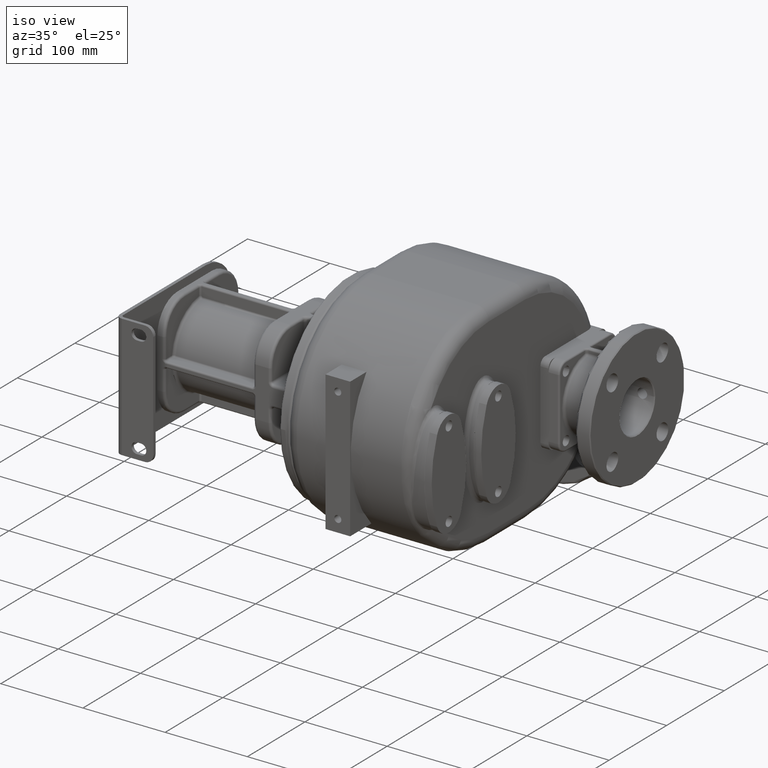
[diagram: clean part render]
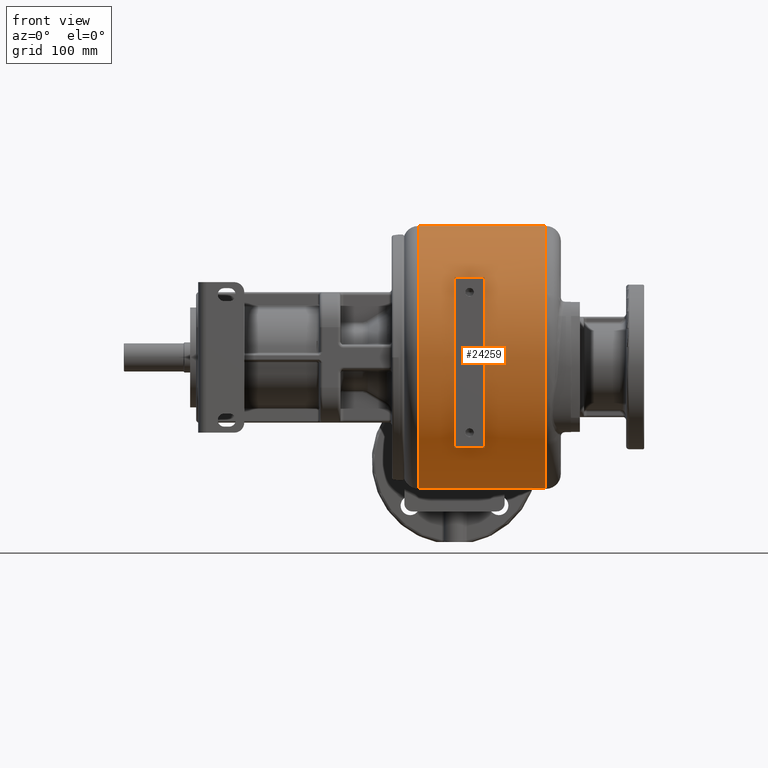
[diagram: tour spotlight — one face highlighted and labeled with its STEP entity id]
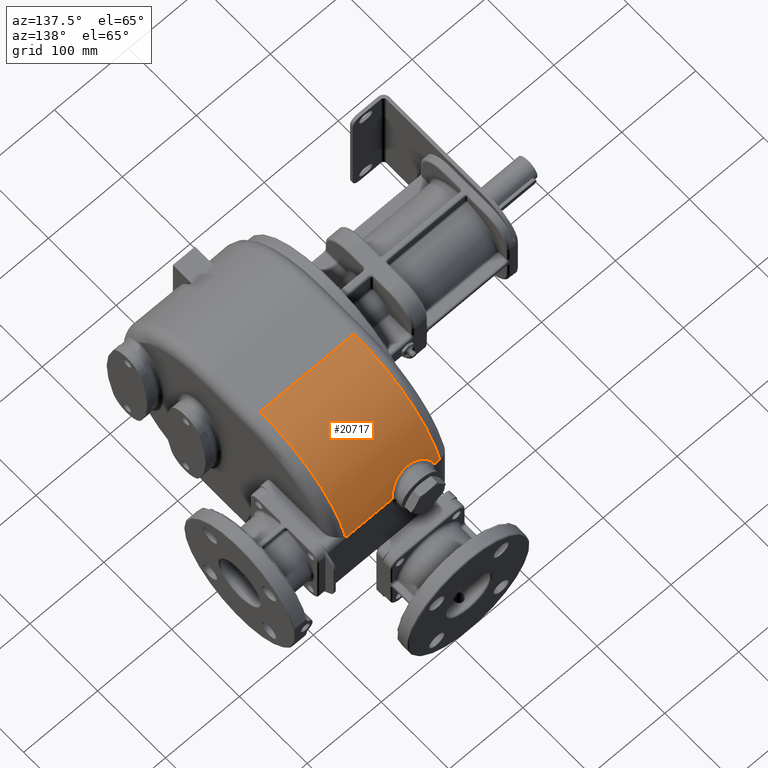
[diagram: tour spotlight — one face highlighted and labeled with its STEP entity id]
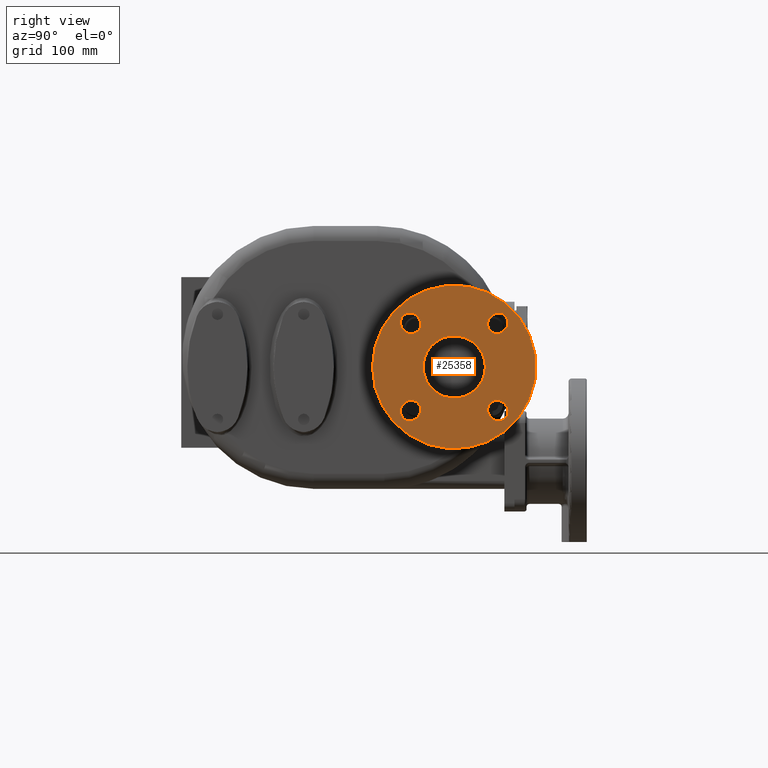
[diagram: tour spotlight — one face highlighted and labeled with its STEP entity id]
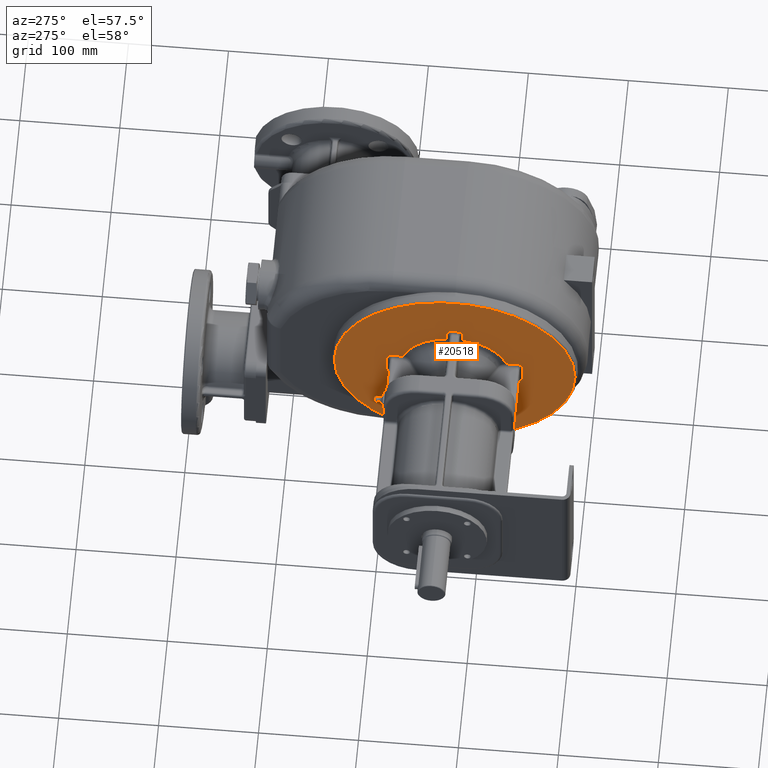
[diagram: tour spotlight — one face highlighted and labeled with its STEP entity id]
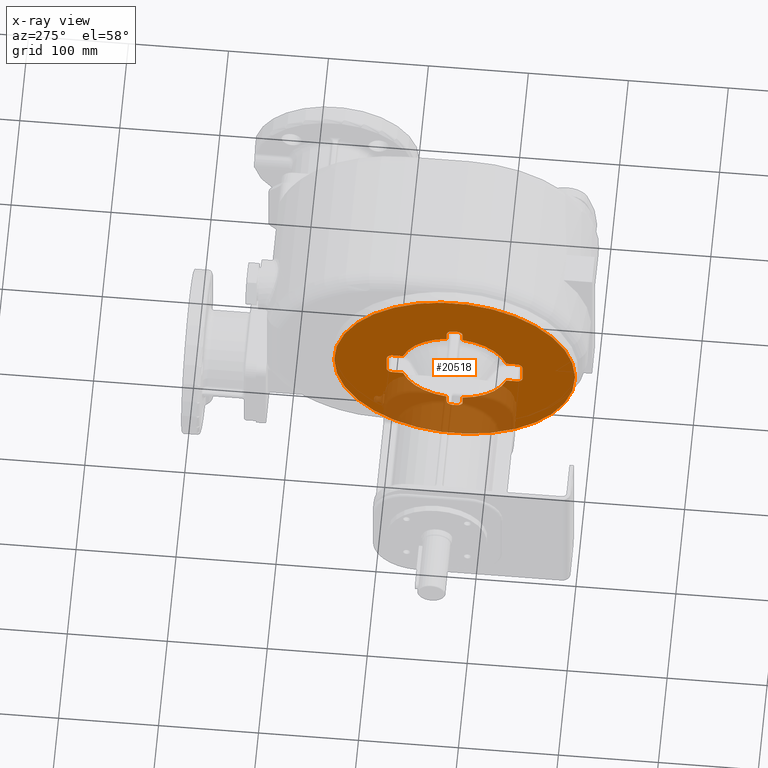
[diagram: x-ray of the same camera — body ghosted, this tour face saturated]
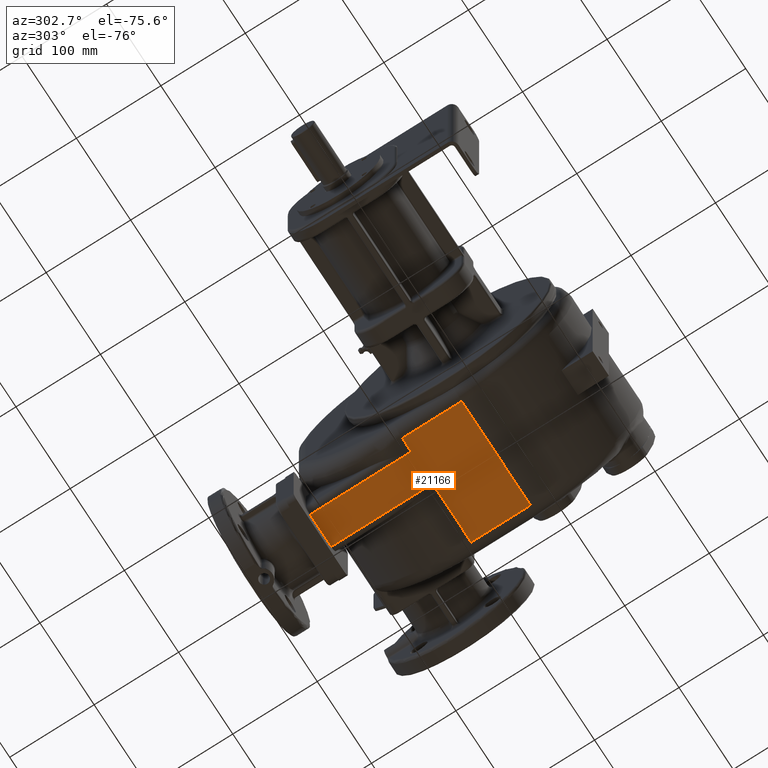
[diagram: tour spotlight — one face highlighted and labeled with its STEP entity id]
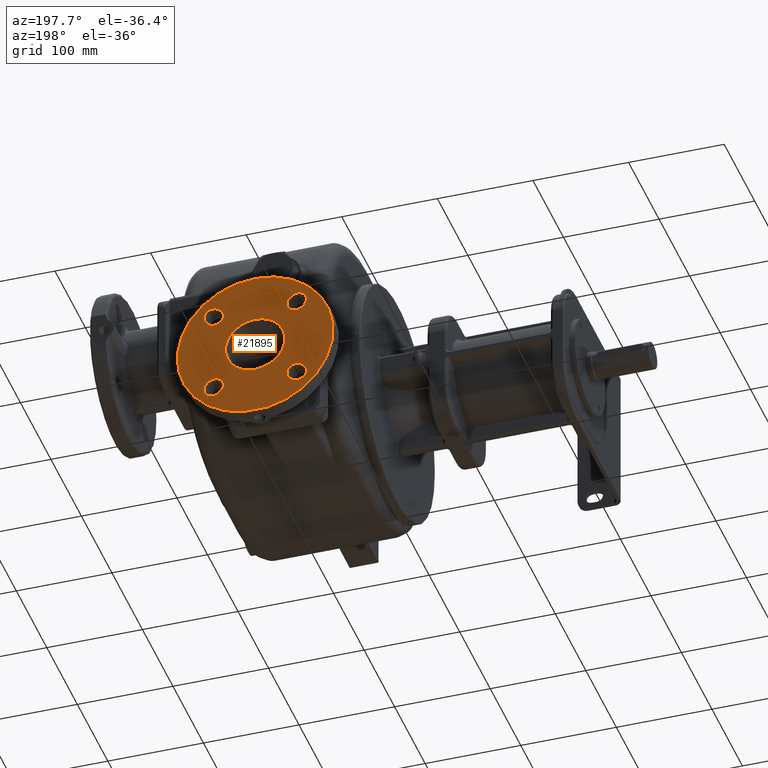
[diagram: tour spotlight — one face highlighted and labeled with its STEP entity id]
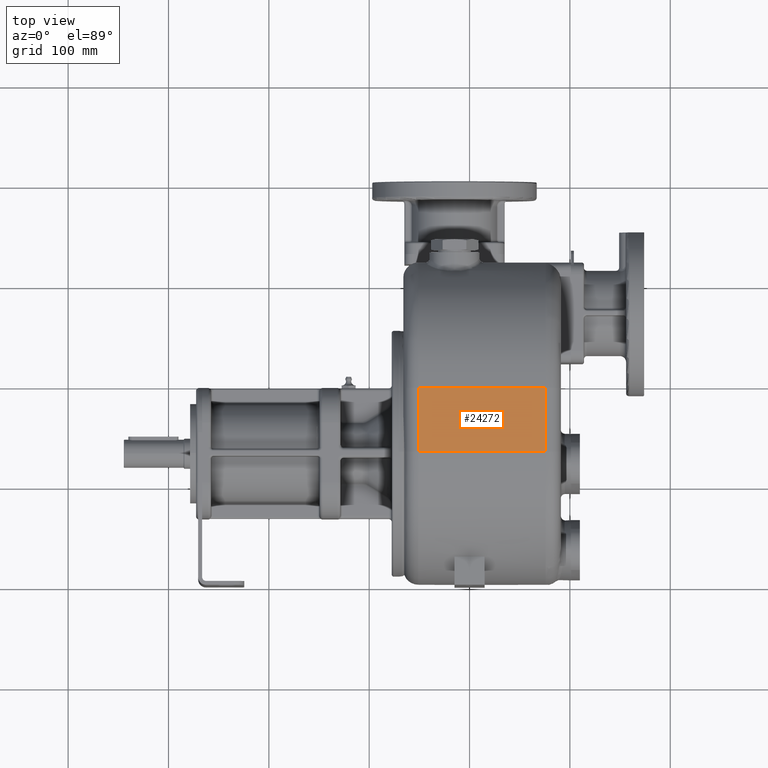
[diagram: tour spotlight — one face highlighted and labeled with its STEP entity id]
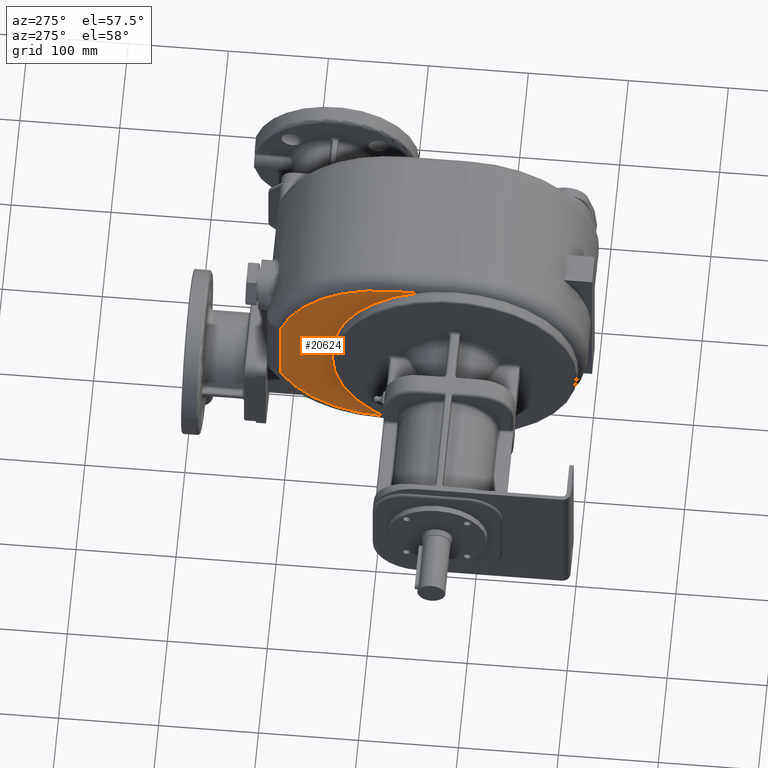
[diagram: tour spotlight — one face highlighted and labeled with its STEP entity id]
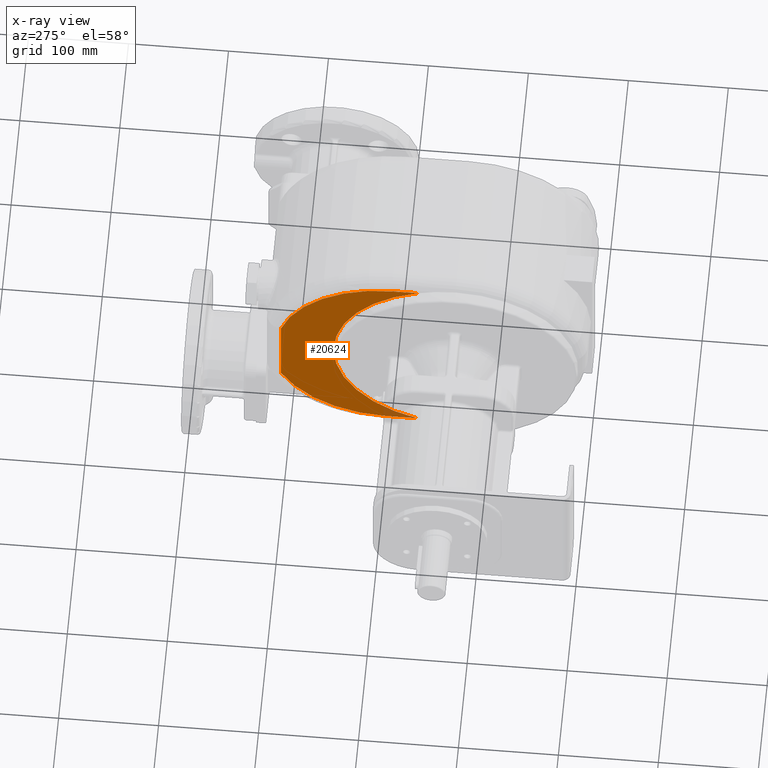
[diagram: x-ray of the same camera — body ghosted, this tour face saturated]
A machine part: a face-by-face anatomy tour. The part has 839 B-rep faces; the first image is the clean iso view, then the 8 largest visible faces are spotlighted one at a time (largest first), each with its STEP entity span.

Face 1 — front view, entity #24259. In plain terms, the highlighted cylindrical surface (partial cylindrical patch) has radius 131 mm, axis along (-1, 0, 0).
Definition (entity closure, byte-faithful):
#5980=CARTESIAN_POINT('',(-5.1E1,1.32E2,0.E0));
#5981=DIRECTION('',(-1.E0,0.E0,0.E0));
#5982=DIRECTION('',(0.E0,0.E0,-1.E0));
#5983=AXIS2_PLACEMENT_3D('',#5980,#5981,#5982);
#5985=CARTESIAN_POINT('',(7.6E1,1.32E2,0.E0));
#5986=DIRECTION('',(1.E0,0.E0,0.E0));
#5987=DIRECTION('',(0.E0,0.E0,1.E0));
#5988=AXIS2_PLACEMENT_3D('',#5985,#5986,#5987);
#5990=DIRECTION('',(1.E0,-7.027099811927E-14,0.E0));
#5991=VECTOR('',#5990,1.27E2);
#5992=CARTESIAN_POINT('',(-5.1E1,1.32E2,-1.31E2));
#5993=LINE('',#5992,#5991);
#5994=DIRECTION('',(-1.E0,0.E0,0.E0));
#5995=VECTOR('',#5994,3.E1);
#5996=CARTESIAN_POINT('',(1.5E1,3.681071488870E1,-9.E1));
#5997=LINE('',#5996,#5995);
#5998=CARTESIAN_POINT('',(1.5E1,1.32E2,0.E0));
#5999=DIRECTION('',(-1.E0,0.E0,0.E0));
#6000=DIRECTION('',(0.E0,-7.266357642084E-1,-6.870229007634E-1));
#6001=AXIS2_PLACEMENT_3D('',#5998,#5999,#6000);
#6003=DIRECTION('',(-1.E0,0.E0,0.E0));
#6004=VECTOR('',#6003,3.E1);
#6005=CARTESIAN_POINT('',(1.5E1,2.826476008607E1,8.E1));
#6006=LINE('',#6005,#6004);
#6007=CARTESIAN_POINT('',(-1.5E1,1.32E2,0.E0));
#6008=DIRECTION('',(-1.E0,0.E0,0.E0));
#6009=DIRECTION('',(0.E0,-7.266357642084E-1,-6.870229007634E-1));
#6010=AXIS2_PLACEMENT_3D('',#6007,#6008,#6009);
#6020=DIRECTION('',(1.E0,1.304713117947E-13,0.E0));
#6021=VECTOR('',#6020,1.27E2);
#6022=CARTESIAN_POINT('',(-5.1E1,1.32E2,1.31E2));
#6023=LINE('',#6022,#6021);
#16112=CARTESIAN_POINT('',(-1.5E1,3.681071488870E1,-9.E1));
#16113=VERTEX_POINT('',#16112);
#16114=CARTESIAN_POINT('',(1.5E1,3.681071488870E1,-9.E1));
#16115=VERTEX_POINT('',#16114);
#16116=CARTESIAN_POINT('',(1.5E1,2.826476008607E1,8.E1));
#16117=VERTEX_POINT('',#16116);
#16118=CARTESIAN_POINT('',(-1.5E1,2.826476008607E1,8.E1));
#16119=VERTEX_POINT('',#16118);
#16210=CARTESIAN_POINT('',(7.6E1,1.32E2,-1.31E2));
#16211=VERTEX_POINT('',#16210);
#16212=CARTESIAN_POINT('',(7.6E1,1.32E2,1.31E2));
#16213=VERTEX_POINT('',#16212);
#16242=CARTESIAN_POINT('',(-5.1E1,1.32E2,-1.31E2));
#16243=VERTEX_POINT('',#16242);
#16244=CARTESIAN_POINT('',(-5.1E1,1.32E2,1.31E2));
#16245=VERTEX_POINT('',#16244);
#24236=CARTESIAN_POINT('',(-6.6E1,1.32E2,0.E0));
#24237=DIRECTION('',(-1.E0,0.E0,0.E0));
#24238=DIRECTION('',(0.E0,0.E0,1.E0));
#24239=AXIS2_PLACEMENT_3D('',#24236,#24237,#24238);
#24240=CYLINDRICAL_SURFACE('',#24239,1.31E2);
#24241=ORIENTED_EDGE('',*,*,#20650,.T.);
#24243=ORIENTED_EDGE('',*,*,#24242,.T.);
#24245=ORIENTED_EDGE('',*,*,#24244,.T.);
#24246=ORIENTED_EDGE('',*,*,#21159,.F.);
#24247=EDGE_LOOP('',(#24241,#24243,#24245,#24246));
#24248=FACE_OUTER_BOUND('',#24247,.F.);
#24250=ORIENTED_EDGE('',*,*,#24249,.F.);
#24252=ORIENTED_EDGE('',*,*,#24251,.T.);
#24254=ORIENTED_EDGE('',*,*,#24253,.T.);
#24256=ORIENTED_EDGE('',*,*,#24255,.F.);
#24257=EDGE_LOOP('',(#24250,#24252,#24254,#24256));
#24258=FACE_BOUND('',#24257,.F.);
#24259=ADVANCED_FACE('',(#24248,#24258),#24240,.T.);
#5984=CIRCLE('',#5983,1.31E2);
#5989=CIRCLE('',#5988,1.31E2);
#6002=CIRCLE('',#6001,1.31E2);
#6011=CIRCLE('',#6010,1.31E2);
#20650=EDGE_CURVE('',#16243,#16245,#5984,.T.);
#21159=EDGE_CURVE('',#16243,#16211,#5993,.T.);
#24242=EDGE_CURVE('',#16245,#16213,#6023,.T.);
#24244=EDGE_CURVE('',#16213,#16211,#5989,.T.);
#24249=EDGE_CURVE('',#16115,#16113,#5997,.T.);
#24251=EDGE_CURVE('',#16115,#16117,#6002,.T.);
#24253=EDGE_CURVE('',#16117,#16119,#6006,.T.);
#24255=EDGE_CURVE('',#16113,#16119,#6011,.T.);

Face 2 — auxiliary view, entity #20717. In plain terms, the highlighted cylindrical surface (partial cylindrical patch) has radius 131 mm, axis along (-1, 0, 0).
Definition (entity closure, byte-faithful):
#2595=CARTESIAN_POINT('',(-1.500000000183E1,3.129615321213E2,5.773705756589E1));
#2596=CARTESIAN_POINT('',(-1.471979193479E1,3.129615729370E2,5.773700650299E1));
#2597=CARTESIAN_POINT('',(-1.415990422692E1,3.129655142521E2,5.772877871125E1));
#2598=CARTESIAN_POINT('',(-1.332152960917E1,3.129829241291E2,5.769338812834E1));
#2599=CARTESIAN_POINT('',(-1.248499565868E1,3.130117599943E2,5.763455533248E1));
#2600=CARTESIAN_POINT('',(-1.165055400183E1,3.130519644456E2,5.755243929547E1));
#2601=CARTESIAN_POINT('',(-1.081849977560E1,3.131035123146E2,5.744693297920E1));
#2602=CARTESIAN_POINT('',(-9.989178546406E0,3.131664272052E2,5.731783751803E1));
#2603=CARTESIAN_POINT('',(-9.162753359095E0,3.132406216841E2,5.716513321147E1));
#2604=CARTESIAN_POINT('',(-8.339077020116E0,3.133260193360E2,5.698874526710E1));
#2605=CARTESIAN_POINT('',(-7.517947577630E0,3.134226059412E2,5.678843201933E1));
#2606=CARTESIAN_POINT('',(-6.699811194376E0,3.135303218916E2,5.656400634136E1));
#2607=CARTESIAN_POINT('',(-5.885946101152E0,3.136489972479E2,5.631547272090E1));
#2608=CARTESIAN_POINT('',(-5.077531607130E0,3.137784174318E2,5.604289410321E1));
#2609=CARTESIAN_POINT('',(-4.274999448406E0,3.139183926659E2,5.574624684742E1));
#2610=CARTESIAN_POINT('',(-3.478599380003E0,3.140687926666E2,5.542534358308E1));
#2611=CARTESIAN_POINT('',(-2.689135869032E0,3.142293895265E2,5.508016612820E1));
#2612=CARTESIAN_POINT('',(-1.907871493071E0,3.143998508923E2,5.471088791610E1));
#2613=CARTESIAN_POINT('',(-1.135787706953E0,3.145798376968E2,5.431766879734E1));
#2614=CARTESIAN_POINT('',(-3.735130064281E-1,3.147690421154E2,
5.390057125121E1));
#2615=CARTESIAN_POINT('',(3.782239298037E-1,3.149671329534E2,5.345967930607E1));
#2616=CARTESIAN_POINT('',(1.118704702472E0,3.151737755542E2,5.299505585176E1));
#2617=CARTESIAN_POINT('',(1.847063211078E0,3.153885757030E2,5.250687005967E1));
#2618=CARTESIAN_POINT('',(2.562190320597E0,3.156110264787E2,5.199552865337E1));
#2619=CARTESIAN_POINT('',(3.263030572094E0,3.158406073503E2,5.146146038803E1));
#2620=CARTESIAN_POINT('',(3.948529100559E0,3.160767690905E2,5.090515523564E1));
#2621=CARTESIAN_POINT('',(4.617684131164E0,3.163189411287E2,5.032715384076E1));
#2622=CARTESIAN_POINT('',(5.269517973710E0,3.165665323186E2,4.972805203141E1));
#2623=CARTESIAN_POINT('',(5.903080270715E0,3.168189360605E2,4.910849512484E1));
#2624=CARTESIAN_POINT('',(6.517440324305E0,3.170755233606E2,4.846920224601E1));
#2625=CARTESIAN_POINT('',(7.111704538704E0,3.173356535477E2,4.781094808026E1));
#2626=CARTESIAN_POINT('',(7.685016538796E0,3.175986782224E2,4.713456037935E1));
#2627=CARTESIAN_POINT('',(8.236581843368E0,3.178639509379E2,4.644090225866E1));
#2628=CARTESIAN_POINT('',(8.765670874488E0,3.181308333221E2,4.573086183456E1));
#2629=CARTESIAN_POINT('',(9.271595233022E0,3.183986892256E2,4.500537351487E1));
#2630=CARTESIAN_POINT('',(9.753721954630E0,3.186668922025E2,4.426540455317E1));
#2631=CARTESIAN_POINT('',(1.021149000445E1,3.189348334244E2,4.351193831816E1));
#2632=CARTESIAN_POINT('',(1.064438492775E1,3.192019169865E2,4.274599164788E1));
#2633=CARTESIAN_POINT('',(1.105194588644E1,3.194675655182E2,4.196860516486E1));
#2634=CARTESIAN_POINT('',(1.143386107843E1,3.197312741837E2,4.118068364861E1));
#2635=CARTESIAN_POINT('',(1.178985148128E1,3.199925552704E2,4.038315321517E1));
#2636=CARTESIAN_POINT('',(1.211967054134E1,3.202509471154E2,3.957693739228E1));
#2637=CARTESIAN_POINT('',(1.242309062989E1,3.205059925964E2,3.876302732530E1));
#2638=CARTESIAN_POINT('',(1.269993829885E1,3.207572537146E2,3.794244189995E1));
#2639=CARTESIAN_POINT('',(1.295008294979E1,3.210043238586E2,3.711619453808E1));
#2640=CARTESIAN_POINT('',(1.317343031402E1,3.212468122981E2,3.628532732174E1));
#2641=CARTESIAN_POINT('',(1.336998079285E1,3.214843872489E2,3.545083698200E1));
#2642=CARTESIAN_POINT('',(1.348314450911E1,3.216391542512E2,3.489310197536E1));
#2643=CARTESIAN_POINT('',(1.353530328629E1,3.217156692193E2,3.461381743231E1));
#2645=CARTESIAN_POINT('',(7.6E1,1.953713778214E2,0.E0));
#2646=DIRECTION('',(1.E0,0.E0,0.E0));
#2647=DIRECTION('',(0.E0,9.644603429157E-1,2.642276422764E-1));
#2648=AXIS2_PLACEMENT_3D('',#2645,#2646,#2647);
#2650=DIRECTION('',(1.E0,0.E0,0.E0));
#2651=VECTOR('',#2650,1.27E2);
#2652=CARTESIAN_POINT('',(-5.1E1,1.953713778214E2,1.31E2));
#2653=LINE('',#2652,#2651);
#2654=CARTESIAN_POINT('',(-5.1E1,1.953713778214E2,0.E0));
#2655=DIRECTION('',(-1.E0,0.E0,0.E0));
#2656=DIRECTION('',(0.E0,0.E0,1.E0));
#2657=AXIS2_PLACEMENT_3D('',#2654,#2655,#2656);
#2659=CARTESIAN_POINT('',(-4.353530328622E1,3.217156693916E2,3.461381747986E1));
#2660=CARTESIAN_POINT('',(-4.348314702426E1,3.216391585231E2,3.489308685513E1));
#2661=CARTESIAN_POINT('',(-4.336998775174E1,3.214843988597E2,3.545079516872E1));
#2662=CARTESIAN_POINT('',(-4.317344574200E1,3.212468326070E2,3.628525673956E1));
#2663=CARTESIAN_POINT('',(-4.295010734811E1,3.210043496328E2,3.711610717530E1));
#2664=CARTESIAN_POINT('',(-4.269997035873E1,3.207572833412E2,3.794234393194E1));
#2665=CARTESIAN_POINT('',(-4.242312811298E1,3.205060247717E2,3.876292342543E1));
#2666=CARTESIAN_POINT('',(-4.211971186629E1,3.202509804026E2,3.957683237340E1));
#2667=CARTESIAN_POINT('',(-4.178989500647E1,3.199925877726E2,4.038305295792E1));
#2668=CARTESIAN_POINT('',(-4.143390461115E1,3.197313053259E2,4.118058964585E1));
#2669=CARTESIAN_POINT('',(-4.105198950175E1,3.194675955188E2,4.196851648215E1));
#2670=CARTESIAN_POINT('',(-4.064443199710E1,3.192019468898E2,4.274590502219E1));
#2671=CARTESIAN_POINT('',(-4.021154073633E1,3.189348636399E2,4.351185253399E1));
#2672=CARTESIAN_POINT('',(-3.975377224369E1,3.186669207793E2,4.426532500227E1));
#2673=CARTESIAN_POINT('',(-3.927164377859E1,3.183987156555E2,4.500530131202E1));
#2674=CARTESIAN_POINT('',(-3.876571740049E1,3.181308571759E2,4.573079785143E1));
#2675=CARTESIAN_POINT('',(-3.823662488888E1,3.178639720901E2,4.644084651114E1));
#2676=CARTESIAN_POINT('',(-3.768505702473E1,3.175986973470E2,4.713451080742E1));
#2677=CARTESIAN_POINT('',(-3.711174637761E1,3.173356722094E2,4.781090047952E1));
#2678=CARTESIAN_POINT('',(-3.651748342625E1,3.170755417945E2,4.846915596880E1));
#2679=CARTESIAN_POINT('',(-3.590312262919E1,3.168189534243E2,4.910845220947E1));
#2680=CARTESIAN_POINT('',(-3.526955524801E1,3.165665467106E2,4.972801700674E1));
#2681=CARTESIAN_POINT('',(-3.461770861388E1,3.163189501689E2,5.032713218657E1));
#2682=CARTESIAN_POINT('',(-3.394853372369E1,3.160767708356E2,5.090515118296E1));
#2683=CARTESIAN_POINT('',(-3.326301020747E1,3.158406000646E2,5.146147753925E1));
#2684=CARTESIAN_POINT('',(-3.256213570588E1,3.156110084506E2,5.199557045047E1));
#2685=CARTESIAN_POINT('',(-3.184696087094E1,3.153885449311E2,5.250694050937E1));
#2686=CARTESIAN_POINT('',(-3.111854561728E1,3.151737302390E2,5.299515842475E1));
#2687=CARTESIAN_POINT('',(-3.037800322680E1,3.149670715515E2,5.345981675202E1));
#2688=CARTESIAN_POINT('',(-2.962622547455E1,3.147689754485E2,5.390071893294E1));
#2689=CARTESIAN_POINT('',(-2.886393197717E1,3.145797718209E2,5.431781334472E1));
#2690=CARTESIAN_POINT('',(-2.809185665697E1,3.143997907367E2,5.471101874724E1));
#2691=CARTESIAN_POINT('',(-2.731063921043E1,3.142293359639E2,5.508028166778E1));
#2692=CARTESIAN_POINT('',(-2.652117944500E1,3.140687453588E2,5.542544488224E1));
#2693=CARTESIAN_POINT('',(-2.572471575803E1,3.139183432313E2,5.574635199377E1));
#2694=CARTESIAN_POINT('',(-2.492210459099E1,3.137783635666E2,5.604300792248E1));
#2695=CARTESIAN_POINT('',(-2.411363620951E1,3.136489387479E2,5.631559562348E1));
#2696=CARTESIAN_POINT('',(-2.329972847040E1,3.135302515662E2,5.656415327201E1));
#2697=CARTESIAN_POINT('',(-2.248150031177E1,3.134225349804E2,5.678857952627E1));
#2698=CARTESIAN_POINT('',(-2.166022988994E1,3.133259480055E2,5.698889290742E1));
#2699=CARTESIAN_POINT('',(-2.083642380367E1,3.132405511699E2,5.716527859787E1));
#2700=CARTESIAN_POINT('',(-2.000989444760E1,3.131663553680E2,5.731798517951E1));
#2701=CARTESIAN_POINT('',(-1.918052357897E1,3.131034204111E2,5.744712134818E1));
#2702=CARTESIAN_POINT('',(-1.834845654966E1,3.130518709106E2,5.755263055436E1));
#2703=CARTESIAN_POINT('',(-1.751405138830E1,3.130117030220E2,5.763467145497E1));
#2704=CARTESIAN_POINT('',(-1.667766130995E1,3.129829077537E2,5.769342193389E1));
#2705=CARTESIAN_POINT('',(-1.583957533122E1,3.129655627090E2,5.772867826769E1));
#2706=CARTESIAN_POINT('',(-1.528001434281E1,3.129615765770E2,5.773700282299E1));
#2707=CARTESIAN_POINT('',(-1.500000000183E1,3.129615321213E2,5.773705756589E1));
#2735=DIRECTION('',(-9.999999999946E-1,-1.447201033562E-6,-2.936728870925E-6));
#2736=VECTOR('',#2735,7.463864599403E0);
#2737=CARTESIAN_POINT('',(-4.353530328622E1,3.217156693916E2,3.461381747986E1));
#2738=LINE('',#2737,#2736);
#9539=DIRECTION('',(-1.E0,-2.165070057069E-7,-5.932800137636E-8));
#9540=VECTOR('',#9539,6.246469671372E1);
#9541=CARTESIAN_POINT('',(7.6E1,3.217156827433E2,3.461382113821E1));
#9542=LINE('',#9541,#9540);
#9543=CARTESIAN_POINT('',(1.353530328629E1,3.217156692193E2,3.461381743231E1));
#16218=CARTESIAN_POINT('',(7.6E1,1.953713778214E2,1.31E2));
#16219=VERTEX_POINT('',#16218);
#16222=CARTESIAN_POINT('',(7.6E1,3.217156827433E2,3.461382113821E1));
#16223=VERTEX_POINT('',#16222);
#16246=CARTESIAN_POINT('',(-5.1E1,1.953713778214E2,1.31E2));
#16247=VERTEX_POINT('',#16246);
#16248=CARTESIAN_POINT('',(-5.1E1,3.217156891195E2,3.461379786449E1));
#16249=VERTEX_POINT('',#16248);
#16282=VERTEX_POINT('',#9543);
#16285=VERTEX_POINT('',#2595);
#16289=CARTESIAN_POINT('',(-4.353530328622E1,3.217156693916E2,
3.461381747986E1));
#16290=VERTEX_POINT('',#16289);
#20697=CARTESIAN_POINT('',(-6.6E1,1.953713778214E2,0.E0));
#20698=DIRECTION('',(-1.E0,0.E0,0.E0));
#20699=DIRECTION('',(0.E0,0.E0,1.E0));
#20700=AXIS2_PLACEMENT_3D('',#20697,#20698,#20699);
#20701=CYLINDRICAL_SURFACE('',#20700,1.31E2);
#20703=ORIENTED_EDGE('',*,*,#20702,.T.);
#20705=ORIENTED_EDGE('',*,*,#20704,.F.);
#20707=ORIENTED_EDGE('',*,*,#20706,.T.);
#20709=ORIENTED_EDGE('',*,*,#20708,.F.);
#20710=ORIENTED_EDGE('',*,*,#20688,.T.);
#20712=ORIENTED_EDGE('',*,*,#20711,.F.);
#20714=ORIENTED_EDGE('',*,*,#20713,.T.);
#20715=EDGE_LOOP('',(#20703,#20705,#20707,#20709,#20710,#20712,#20714));
#20716=FACE_OUTER_BOUND('',#20715,.F.);
#20717=ADVANCED_FACE('',(#20716),#20701,.T.);
#2644=B_SPLINE_CURVE_WITH_KNOTS('',3,(#2595,#2596,#2597,#2598,#2599,#2600,#2601,
#2602,#2603,#2604,#2605,#2606,#2607,#2608,#2609,#2610,#2611,#2612,#2613,#2614,
#2615,#2616,#2617,#2618,#2619,#2620,#2621,#2622,#2623,#2624,#2625,#2626,#2627,
#2628,#2629,#2630,#2631,#2632,#2633,#2634,#2635,#2636,#2637,#2638,#2639,#2640,
#2641,#2642,#2643),.UNSPECIFIED.,.F.,.F.,(4,1,1,1,1,1,1,1,1,1,1,1,1,1,1,1,1,1,1,
1,1,1,1,1,1,1,1,1,1,1,1,1,1,1,1,1,1,1,1,1,1,1,1,1,1,1,4),(0.E0,
2.173913043478E-2,4.347826086957E-2,6.521739130435E-2,8.695652173913E-2,
1.086956521739E-1,1.304347826087E-1,1.521739130435E-1,1.739130434783E-1,
1.956521739130E-1,2.173913043478E-1,2.391304347826E-1,2.608695652174E-1,
2.826086956522E-1,3.043478260870E-1,3.260869565217E-1,3.478260869565E-1,
3.695652173913E-1,3.913043478261E-1,4.130434782609E-1,4.347826086957E-1,
4.565217391304E-1,4.782608695652E-1,5.E-1,5.217391304348E-1,5.434782608696E-1,
5.652173913043E-1,5.869565217391E-1,6.086956521739E-1,6.304347826087E-1,
6.521739130435E-1,6.739130434783E-1,6.956521739130E-1,7.173913043478E-1,
7.391304347826E-1,7.608695652174E-1,7.826086956522E-1,8.043478260870E-1,
8.260869565217E-1,8.478260869565E-1,8.695652173913E-1,8.913043478261E-1,
9.130434782609E-1,9.347826086957E-1,9.565217391304E-1,9.782608695652E-1,1.E0),
.UNSPECIFIED.);
#2649=CIRCLE('',#2648,1.31E2);
#2658=CIRCLE('',#2657,1.31E2);
#2708=B_SPLINE_CURVE_WITH_KNOTS('',3,(#2659,#2660,#2661,#2662,#2663,#2664,#2665,
#2666,#2667,#2668,#2669,#2670,#2671,#2672,#2673,#2674,#2675,#2676,#2677,#2678,
#2679,#2680,#2681,#2682,#2683,#2684,#2685,#2686,#2687,#2688,#2689,#2690,#2691,
#2692,#2693,#2694,#2695,#2696,#2697,#2698,#2699,#2700,#2701,#2702,#2703,#2704,
#2705,#2706,#2707),.UNSPECIFIED.,.F.,.F.,(4,1,1,1,1,1,1,1,1,1,1,1,1,1,1,1,1,1,1,
1,1,1,1,1,1,1,1,1,1,1,1,1,1,1,1,1,1,1,1,1,1,1,1,1,1,1,4),(0.E0,
2.173913043478E-2,4.347826086957E-2,6.521739130435E-2,8.695652173913E-2,
1.086956521739E-1,1.304347826087E-1,1.521739130435E-1,1.739130434783E-1,
1.956521739130E-1,2.173913043478E-1,2.391304347826E-1,2.608695652174E-1,
2.826086956522E-1,3.043478260870E-1,3.260869565217E-1,3.478260869565E-1,
3.695652173913E-1,3.913043478261E-1,4.130434782609E-1,4.347826086957E-1,
4.565217391304E-1,4.782608695652E-1,5.E-1,5.217391304348E-1,5.434782608696E-1,
5.652173913043E-1,5.869565217391E-1,6.086956521739E-1,6.304347826087E-1,
6.521739130435E-1,6.739130434783E-1,6.956521739130E-1,7.173913043478E-1,
7.391304347826E-1,7.608695652174E-1,7.826086956522E-1,8.043478260870E-1,
8.260869565217E-1,8.478260869565E-1,8.695652173913E-1,8.913043478261E-1,
9.130434782609E-1,9.347826086957E-1,9.565217391304E-1,9.782608695652E-1,1.E0),
.UNSPECIFIED.);
#20688=EDGE_CURVE('',#16247,#16249,#2658,.T.);
#20702=EDGE_CURVE('',#16285,#16282,#2644,.T.);
#20704=EDGE_CURVE('',#16223,#16282,#9542,.T.);
#20706=EDGE_CURVE('',#16223,#16219,#2649,.T.);
#20708=EDGE_CURVE('',#16247,#16219,#2653,.T.);
#20711=EDGE_CURVE('',#16290,#16249,#2738,.T.);
#20713=EDGE_CURVE('',#16290,#16285,#2708,.T.);

Face 3 — right view, entity #25358. In plain terms, the highlighted planar face has unit normal (1, 0, 0).
Definition (entity closure, byte-faithful):
#7287=CARTESIAN_POINT('',(1.74E2,2.72E2,-9.5E0));
#7288=DIRECTION('',(1.E0,0.E0,0.E0));
#7289=DIRECTION('',(0.E0,9.877300613497E-1,1.561708228387E-1));
#7290=AXIS2_PLACEMENT_3D('',#7287,#7288,#7289);
#7313=DIRECTION('',(0.E0,0.E0,-1.E0));
#7314=VECTOR('',#7313,2.545584412272E1);
#7315=CARTESIAN_POINT('',(1.74E2,3.525E2,3.227922061358E0));
#7316=LINE('',#7315,#7314);
#7317=CARTESIAN_POINT('',(1.74E2,2.72E2,-9.5E0));
#7318=DIRECTION('',(1.E0,0.E0,0.E0));
#7319=DIRECTION('',(0.E0,1.E0,0.E0));
#7320=AXIS2_PLACEMENT_3D('',#7317,#7318,#7319);
#7322=CARTESIAN_POINT('',(1.74E2,2.72E2,-9.5E0));
#7323=DIRECTION('',(1.E0,0.E0,0.E0));
#7324=DIRECTION('',(0.E0,-1.E0,0.E0));
#7325=AXIS2_PLACEMENT_3D('',#7322,#7323,#7324);
#7327=DIRECTION('',(0.E0,7.071067811866E-1,-7.071067811865E-1));
#7328=VECTOR('',#7327,2.E0);
#7329=CARTESIAN_POINT('',(1.74E2,3.080624458405E2,-5.899747468306E1));
#7330=LINE('',#7329,#7328);
#7331=CARTESIAN_POINT('',(1.74E2,3.161941738242E2,-5.369417382416E1));
#7332=DIRECTION('',(1.E0,0.E0,0.E0));
#7333=DIRECTION('',(0.E0,-7.071067811866E-1,-7.071067811865E-1));
#7334=AXIS2_PLACEMENT_3D('',#7331,#7332,#7333);
#7336=DIRECTION('',(0.E0,-7.071067811865E-1,7.071067811865E-1));
#7337=VECTOR('',#7336,2.E0);
#7338=CARTESIAN_POINT('',(1.74E2,3.229116882454E2,-4.697665940289E1));
#7339=LINE('',#7338,#7337);
#7340=CARTESIAN_POINT('',(1.74E2,3.147799602618E2,-5.227996026179E1));
#7341=DIRECTION('',(1.E0,0.E0,0.E0));
#7342=DIRECTION('',(0.E0,7.071067811865E-1,7.071067811866E-1));
#7343=AXIS2_PLACEMENT_3D('',#7340,#7341,#7342);
#7345=DIRECTION('',(0.E0,7.071067811866E-1,7.071067811865E-1));
#7346=VECTOR('',#7345,2.E0);
#7347=CARTESIAN_POINT('',(1.74E2,3.214974746831E2,2.656244584051E1));
#7348=LINE('',#7347,#7346);
#7349=CARTESIAN_POINT('',(1.74E2,3.161941738242E2,3.469417382416E1));
#7350=DIRECTION('',(1.E0,0.E0,0.E0));
#7351=DIRECTION('',(0.E0,7.071067811865E-1,-7.071067811866E-1));
#7352=AXIS2_PLACEMENT_3D('',#7349,#7350,#7351);
#7354=DIRECTION('',(0.E0,-7.071067811865E-1,-7.071067811866E-1));
#7355=VECTOR('',#7354,2.E0);
#7356=CARTESIAN_POINT('',(1.74E2,3.094766594029E2,4.141168824543E1));
#7357=LINE('',#7356,#7355);
#7358=CARTESIAN_POINT('',(1.74E2,3.147799602618E2,3.327996026179E1));
#7359=DIRECTION('',(1.E0,0.E0,0.E0));
#7360=DIRECTION('',(0.E0,-7.071067811866E-1,7.071067811865E-1));
#7361=AXIS2_PLACEMENT_3D('',#7358,#7359,#7360);
#7363=DIRECTION('',(0.E0,-7.071067811865E-1,7.071067811866E-1));
#7364=VECTOR('',#7363,2.E0);
#7365=CARTESIAN_POINT('',(1.74E2,2.359375541595E2,3.999747468306E1));
#7366=LINE('',#7365,#7364);
#7367=CARTESIAN_POINT('',(1.74E2,2.278058261758E2,3.469417382416E1));
#7368=DIRECTION('',(1.E0,0.E0,0.E0));
#7369=DIRECTION('',(0.E0,7.071067811865E-1,7.071067811865E-1));
#7370=AXIS2_PLACEMENT_3D('',#7367,#7368,#7369);
#7372=DIRECTION('',(0.E0,7.071067811866E-1,-7.071067811865E-1));
#7373=VECTOR('',#7372,2.E0);
#7374=CARTESIAN_POINT('',(1.74E2,2.210883117546E2,2.797665940289E1));
#7375=LINE('',#7374,#7373);
#7376=CARTESIAN_POINT('',(1.74E2,2.292200397382E2,3.327996026179E1));
#7377=DIRECTION('',(1.E0,0.E0,0.E0));
#7378=DIRECTION('',(0.E0,-7.071067811865E-1,-7.071067811866E-1));
#7379=AXIS2_PLACEMENT_3D('',#7376,#7377,#7378);
#7381=DIRECTION('',(0.E0,-7.071067811866E-1,-7.071067811865E-1));
#7382=VECTOR('',#7381,2.E0);
#7383=CARTESIAN_POINT('',(1.74E2,2.225025253169E2,-4.556244584051E1));
#7384=LINE('',#7383,#7382);
#7385=CARTESIAN_POINT('',(1.74E2,2.278058261758E2,-5.369417382416E1));
#7386=DIRECTION('',(1.E0,0.E0,0.E0));
#7387=DIRECTION('',(0.E0,-7.071067811865E-1,7.071067811865E-1));
#7388=AXIS2_PLACEMENT_3D('',#7385,#7386,#7387);
#7390=DIRECTION('',(0.E0,7.071067811866E-1,7.071067811865E-1));
#7391=VECTOR('',#7390,2.E0);
#7392=CARTESIAN_POINT('',(1.74E2,2.345233405971E2,-6.041168824543E1));
#7393=LINE('',#7392,#7391);
#7394=CARTESIAN_POINT('',(1.74E2,2.292200397382E2,-5.227996026179E1));
#7395=DIRECTION('',(1.E0,0.E0,0.E0));
#7396=DIRECTION('',(0.E0,7.071067811866E-1,-7.071067811865E-1));
#7397=AXIS2_PLACEMENT_3D('',#7394,#7395,#7396);
#17000=CARTESIAN_POINT('',(1.74E2,3.080624458405E2,-5.899747468306E1));
#17001=CARTESIAN_POINT('',(1.74E2,3.094766594029E2,-6.041168824543E1));
#17002=VERTEX_POINT('',#17000);
#17003=VERTEX_POINT('',#17001);
#17004=CARTESIAN_POINT('',(1.74E2,3.229116882454E2,-4.697665940289E1));
#17005=VERTEX_POINT('',#17004);
#17006=CARTESIAN_POINT('',(1.74E2,3.214974746831E2,-4.556244584051E1));
#17007=VERTEX_POINT('',#17006);
#17016=CARTESIAN_POINT('',(1.74E2,3.214974746831E2,2.656244584051E1));
#17017=CARTESIAN_POINT('',(1.74E2,3.229116882454E2,2.797665940289E1));
#17018=VERTEX_POINT('',#17016);
#17019=VERTEX_POINT('',#17017);
#17020=CARTESIAN_POINT('',(1.74E2,3.094766594029E2,4.141168824543E1));
#17021=VERTEX_POINT('',#17020);
#17022=CARTESIAN_POINT('',(1.74E2,3.080624458405E2,3.999747468306E1));
#17023=VERTEX_POINT('',#17022);
#17032=CARTESIAN_POINT('',(1.74E2,2.359375541595E2,3.999747468306E1));
#17033=CARTESIAN_POINT('',(1.74E2,2.345233405971E2,4.141168824543E1));
#17034=VERTEX_POINT('',#17032);
#17035=VERTEX_POINT('',#17033);
#17036=CARTESIAN_POINT('',(1.74E2,2.210883117546E2,2.797665940289E1));
#17037=VERTEX_POINT('',#17036);
#17038=CARTESIAN_POINT('',(1.74E2,2.225025253169E2,2.656244584051E1));
#17039=VERTEX_POINT('',#17038);
#17048=CARTESIAN_POINT('',(1.74E2,2.225025253169E2,-4.556244584051E1));
#17049=CARTESIAN_POINT('',(1.74E2,2.210883117546E2,-4.697665940289E1));
#17050=VERTEX_POINT('',#17048);
#17051=VERTEX_POINT('',#17049);
#17052=CARTESIAN_POINT('',(1.74E2,2.345233405971E2,-6.041168824543E1));
#17053=VERTEX_POINT('',#17052);
#17054=CARTESIAN_POINT('',(1.74E2,2.359375541595E2,-5.899747468306E1));
#17055=VERTEX_POINT('',#17054);
#17064=CARTESIAN_POINT('',(1.74E2,3.525E2,3.227922061358E0));
#17065=CARTESIAN_POINT('',(1.74E2,3.525E2,-2.222792206136E1));
#17066=VERTEX_POINT('',#17064);
#17067=VERTEX_POINT('',#17065);
#17254=CARTESIAN_POINT('',(1.74E2,3.03E2,-9.5E0));
#17255=CARTESIAN_POINT('',(1.74E2,2.41E2,-9.5E0));
#17256=VERTEX_POINT('',#17254);
#17257=VERTEX_POINT('',#17255);
#25303=CARTESIAN_POINT('',(1.74E2,2.72E2,-9.5E0));
#25304=DIRECTION('',(1.E0,0.E0,0.E0));
#25305=DIRECTION('',(0.E0,-1.E0,0.E0));
#25306=AXIS2_PLACEMENT_3D('',#25303,#25304,#25305);
#25307=PLANE('',#25306);
#25308=ORIENTED_EDGE('',*,*,#25278,.T.);
#25309=ORIENTED_EDGE('',*,*,#25294,.F.);
#25310=EDGE_LOOP('',(#25308,#25309));
#25311=FACE_OUTER_BOUND('',#25310,.F.);
#25313=ORIENTED_EDGE('',*,*,#25312,.T.);
#25315=ORIENTED_EDGE('',*,*,#25314,.T.);
#25316=EDGE_LOOP('',(#25313,#25315));
#25317=FACE_BOUND('',#25316,.F.);
#25319=ORIENTED_EDGE('',*,*,#25318,.T.);
#25321=ORIENTED_EDGE('',*,*,#25320,.T.);
#25323=ORIENTED_EDGE('',*,*,#25322,.T.);
#25325=ORIENTED_EDGE('',*,*,#25324,.T.);
#25326=EDGE_LOOP('',(#25319,#25321,#25323,#25325));
#25327=FACE_BOUND('',#25326,.F.);
#25329=ORIENTED_EDGE('',*,*,#25328,.T.);
#25331=ORIENTED_EDGE('',*,*,#25330,.T.);
#25333=ORIENTED_EDGE('',*,*,#25332,.T.);
#25335=ORIENTED_EDGE('',*,*,#25334,.T.);
#25336=EDGE_LOOP('',(#25329,#25331,#25333,#25335));
#25337=FACE_BOUND('',#25336,.F.);
#25339=ORIENTED_EDGE('',*,*,#25338,.T.);
#25341=ORIENTED_EDGE('',*,*,#25340,.T.);
#25343=ORIENTED_EDGE('',*,*,#25342,.T.);
#25345=ORIENTED_EDGE('',*,*,#25344,.T.);
#25346=EDGE_LOOP('',(#25339,#25341,#25343,#25345));
#25347=FACE_BOUND('',#25346,.F.);
#25349=ORIENTED_EDGE('',*,*,#25348,.T.);
#25351=ORIENTED_EDGE('',*,*,#25350,.T.);
#25353=ORIENTED_EDGE('',*,*,#25352,.T.);
#25355=ORIENTED_EDGE('',*,*,#25354,.T.);
#25356=EDGE_LOOP('',(#25349,#25351,#25353,#25355));
#25357=FACE_BOUND('',#25356,.F.);
#25358=ADVANCED_FACE('',(#25311,#25317,#25327,#25337,#25347,#25357),#25307,.T.);
#7291=CIRCLE('',#7290,8.15E1);
#7321=CIRCLE('',#7320,3.1E1);
#7326=CIRCLE('',#7325,3.1E1);
#7335=CIRCLE('',#7334,9.5E0);
#7344=CIRCLE('',#7343,9.5E0);
#7353=CIRCLE('',#7352,9.5E0);
#7362=CIRCLE('',#7361,9.5E0);
#7371=CIRCLE('',#7370,9.5E0);
#7380=CIRCLE('',#7379,9.5E0);
#7389=CIRCLE('',#7388,9.5E0);
#7398=CIRCLE('',#7397,9.5E0);
#25278=EDGE_CURVE('',#17066,#17067,#7316,.T.);
#25294=EDGE_CURVE('',#17066,#17067,#7291,.T.);
#25312=EDGE_CURVE('',#17256,#17257,#7321,.T.);
#25314=EDGE_CURVE('',#17257,#17256,#7326,.T.);
#25318=EDGE_CURVE('',#17002,#17003,#7330,.T.);
#25320=EDGE_CURVE('',#17003,#17005,#7335,.T.);
#25322=EDGE_CURVE('',#17005,#17007,#7339,.T.);
#25324=EDGE_CURVE('',#17007,#17002,#7344,.T.);
#25328=EDGE_CURVE('',#17018,#17019,#7348,.T.);
#25330=EDGE_CURVE('',#17019,#17021,#7353,.T.);
#25332=EDGE_CURVE('',#17021,#17023,#7357,.T.);
#25334=EDGE_CURVE('',#17023,#17018,#7362,.T.);
#25338=EDGE_CURVE('',#17034,#17035,#7366,.T.);
#25340=EDGE_CURVE('',#17035,#17037,#7371,.T.);
#25342=EDGE_CURVE('',#17037,#17039,#7375,.T.);
#25344=EDGE_CURVE('',#17039,#17034,#7380,.T.);
#25348=EDGE_CURVE('',#17050,#17051,#7384,.T.);
#25350=EDGE_CURVE('',#17051,#17053,#7389,.T.);
#25352=EDGE_CURVE('',#17053,#17055,#7393,.T.);
#25354=EDGE_CURVE('',#17055,#17050,#7398,.T.);

Face 4 — auxiliary view, entity #20518. An x-ray twin of the same camera follows (body ghosted, this face saturated) — the face is partly hidden behind the body. In plain terms, the highlighted planar face has unit normal (-1, 0, 0).
Definition (entity closure, byte-faithful):
#2319=CARTESIAN_POINT('',(-7.75E1,1.32E2,0.E0));
#2320=DIRECTION('',(1.E0,0.E0,0.E0));
#2321=DIRECTION('',(0.E0,1.E0,0.E0));
#2322=AXIS2_PLACEMENT_3D('',#2319,#2320,#2321);
#2324=CARTESIAN_POINT('',(-7.75E1,1.32E2,0.E0));
#2325=DIRECTION('',(1.E0,0.E0,0.E0));
#2326=DIRECTION('',(0.E0,-1.E0,0.E0));
#2327=AXIS2_PLACEMENT_3D('',#2324,#2325,#2326);
#2329=DIRECTION('',(0.E0,7.240056507707E-13,-1.E0));
#2330=VECTOR('',#2329,1.899999999955E1);
#2331=CARTESIAN_POINT('',(-7.75E1,2.E2,9.499999999882E0));
#2332=LINE('',#2331,#2330);
#2333=CARTESIAN_POINT('',(-7.75E1,1.94E2,-9.5E0));
#2334=DIRECTION('',(-1.E0,0.E0,0.E0));
#2335=DIRECTION('',(0.E0,1.E0,0.E0));
#2336=AXIS2_PLACEMENT_3D('',#2333,#2334,#2335);
#2338=DIRECTION('',(-7.138413883412E-8,-1.E0,-3.369449234355E-12));
#2339=VECTOR('',#2338,1.030402656674E1);
#2340=CARTESIAN_POINT('',(-7.75E1,1.939999999999E2,-1.549999999997E1));
#2341=LINE('',#2340,#2339);
#2342=CARTESIAN_POINT('',(-7.75E1,1.32E2,0.E0));
#2343=DIRECTION('',(-1.E0,0.E0,0.E0));
#2344=DIRECTION('',(0.E0,9.578711101491E-1,-2.871984267745E-1));
#2345=AXIS2_PLACEMENT_3D('',#2342,#2343,#2344);
#2347=DIRECTION('',(1.020586691364E-7,-2.431468840314E-12,-1.E0));
#2348=VECTOR('',#2347,8.626563997804E0);
#2349=CARTESIAN_POINT('',(-7.750000088042E1,1.4E2,-5.337343600186E1));
#2350=LINE('',#2349,#2348);
#2351=CARTESIAN_POINT('',(-7.75E1,1.34E2,-6.2E1));
#2352=DIRECTION('',(-1.E0,0.E0,0.E0));
#2353=DIRECTION('',(0.E0,1.E0,0.E0));
#2354=AXIS2_PLACEMENT_3D('',#2351,#2352,#2353);
#2356=DIRECTION('',(0.E0,-1.E0,-3.439026841468E-12));
#2357=VECTOR('',#2356,3.999999999548E0);
#2358=CARTESIAN_POINT('',(-7.75E1,1.339999999999E2,-6.799999999997E1));
#2359=LINE('',#2358,#2357);
#2360=CARTESIAN_POINT('',(-7.75E1,1.3E2,-6.2E1));
#2361=DIRECTION('',(-1.E0,0.E0,0.E0));
#2362=DIRECTION('',(0.E0,0.E0,-1.E0));
#2363=AXIS2_PLACEMENT_3D('',#2360,#2361,#2362);
#2365=DIRECTION('',(-1.020533960092E-7,-4.022796008054E-12,1.E0));
#2366=VECTOR('',#2365,8.626563998037E0);
#2367=CARTESIAN_POINT('',(-7.75E1,1.24E2,-6.199999999988E1));
#2368=LINE('',#2367,#2366);
#2369=CARTESIAN_POINT('',(-7.75E1,1.32E2,0.E0));
#2370=DIRECTION('',(-1.E0,0.E0,0.E0));
#2371=DIRECTION('',(0.E0,-1.482314459304E-1,-9.889526977755E-1));
#2372=AXIS2_PLACEMENT_3D('',#2369,#2370,#2371);
#2374=DIRECTION('',(7.140882020101E-8,-1.E0,2.035288700998E-12));
#2375=VECTOR('',#2374,1.030402656668E1);
#2376=CARTESIAN_POINT('',(-7.750000073580E1,8.030402656702E1,-1.55E1));
#2377=LINE('',#2376,#2375);
#2378=CARTESIAN_POINT('',(-7.75E1,7.E1,-9.5E0));
#2379=DIRECTION('',(-1.E0,0.E0,0.E0));
#2380=DIRECTION('',(0.E0,0.E0,-1.E0));
#2381=AXIS2_PLACEMENT_3D('',#2378,#2379,#2380);
#2383=DIRECTION('',(0.E0,-7.240056507707E-13,1.E0));
#2384=VECTOR('',#2383,1.899999999955E1);
#2385=CARTESIAN_POINT('',(-7.75E1,6.400000000003E1,-9.499999999882E0));
#2386=LINE('',#2385,#2384);
#2387=CARTESIAN_POINT('',(-7.75E1,7.E1,9.5E0));
#2388=DIRECTION('',(-1.E0,0.E0,0.E0));
#2389=DIRECTION('',(0.E0,-1.E0,0.E0));
#2390=AXIS2_PLACEMENT_3D('',#2387,#2388,#2389);
#2392=DIRECTION('',(-7.138414021328E-8,1.E0,3.368759656614E-12));
#2393=VECTOR('',#2392,1.030402656674E1);
#2394=CARTESIAN_POINT('',(-7.75E1,7.000000000012E1,1.549999999997E1));
#2395=LINE('',#2394,#2393);
#2396=CARTESIAN_POINT('',(-7.75E1,1.32E2,0.E0));
#2397=DIRECTION('',(-1.E0,0.E0,0.E0));
#2398=DIRECTION('',(0.E0,-9.578711101491E-1,2.871984267745E-1));
#2399=AXIS2_PLACEMENT_3D('',#2396,#2397,#2398);
#2401=DIRECTION('',(1.020586658417E-7,2.428174167089E-12,1.E0));
#2402=VECTOR('',#2401,8.626563997804E0);
#2403=CARTESIAN_POINT('',(-7.750000088042E1,1.24E2,5.337343600186E1));
#2404=LINE('',#2403,#2402);
#2405=CARTESIAN_POINT('',(-7.75E1,1.3E2,6.2E1));
#2406=DIRECTION('',(-1.E0,0.E0,0.E0));
#2407=DIRECTION('',(0.E0,-1.E0,0.E0));
#2408=AXIS2_PLACEMENT_3D('',#2405,#2406,#2407);
#2410=DIRECTION('',(0.E0,1.E0,3.439026841468E-12));
#2411=VECTOR('',#2410,3.999999999548E0);
#2412=CARTESIAN_POINT('',(-7.75E1,1.300000000001E2,6.799999999997E1));
#2413=LINE('',#2412,#2411);
#2414=CARTESIAN_POINT('',(-7.75E1,1.34E2,6.2E1));
#2415=DIRECTION('',(-1.E0,0.E0,0.E0));
#2416=DIRECTION('',(0.E0,0.E0,1.E0));
#2417=AXIS2_PLACEMENT_3D('',#2414,#2415,#2416);
#2419=DIRECTION('',(-1.020533976565E-7,4.026090681279E-12,-1.E0));
#2420=VECTOR('',#2419,8.626563998037E0);
#2421=CARTESIAN_POINT('',(-7.75E1,1.4E2,6.199999999988E1));
#2422=LINE('',#2421,#2420);
#2423=CARTESIAN_POINT('',(-7.75E1,1.32E2,0.E0));
#2424=DIRECTION('',(-1.E0,0.E0,0.E0));
#2425=DIRECTION('',(0.E0,1.482314459304E-1,9.889526977755E-1));
#2426=AXIS2_PLACEMENT_3D('',#2423,#2424,#2425);
#2428=DIRECTION('',(7.140881882186E-8,1.E0,-2.034254334388E-12));
#2429=VECTOR('',#2428,1.030402656668E1);
#2430=CARTESIAN_POINT('',(-7.750000073580E1,1.836959734330E2,1.55E1));
#2431=LINE('',#2430,#2429);
#2432=CARTESIAN_POINT('',(-7.75E1,1.94E2,9.5E0));
#2433=DIRECTION('',(-1.E0,0.E0,0.E0));
#2434=DIRECTION('',(0.E0,0.E0,1.E0));
#2435=AXIS2_PLACEMENT_3D('',#2432,#2433,#2434);
#17329=CARTESIAN_POINT('',(-7.75E1,2.525E2,0.E0));
#17330=CARTESIAN_POINT('',(-7.75E1,1.15E1,0.E0));
#17331=VERTEX_POINT('',#17329);
#17332=VERTEX_POINT('',#17330);
#17399=CARTESIAN_POINT('',(-7.75E1,2.E2,9.499999999882E0));
#17400=CARTESIAN_POINT('',(-7.75E1,2.E2,-9.499999999665E0));
#17401=VERTEX_POINT('',#17399);
#17402=VERTEX_POINT('',#17400);
#17491=CARTESIAN_POINT('',(-7.75E1,6.400000000003E1,-9.499999999882E0));
#17492=CARTESIAN_POINT('',(-7.75E1,6.400000000002E1,9.499999999665E0));
#17493=VERTEX_POINT('',#17491);
#17494=VERTEX_POINT('',#17492);
#17589=CARTESIAN_POINT('',(-7.75E1,1.94E2,-1.55E1));
#17590=VERTEX_POINT('',#17589);
#17591=CARTESIAN_POINT('',(-7.75E1,7.E1,-1.55E1));
#17592=VERTEX_POINT('',#17591);
#17593=CARTESIAN_POINT('',(-7.75E1,7.E1,1.55E1));
#17594=VERTEX_POINT('',#17593);
#17595=CARTESIAN_POINT('',(-7.75E1,1.94E2,1.55E1));
#17596=VERTEX_POINT('',#17595);
#17597=CARTESIAN_POINT('',(-7.75E1,1.4E2,-6.2E1));
#17598=VERTEX_POINT('',#17597);
#17599=CARTESIAN_POINT('',(-7.75E1,1.34E2,-6.8E1));
#17600=VERTEX_POINT('',#17599);
#17601=CARTESIAN_POINT('',(-7.75E1,1.3E2,-6.8E1));
#17602=VERTEX_POINT('',#17601);
#17603=CARTESIAN_POINT('',(-7.75E1,1.24E2,-6.2E1));
#17604=VERTEX_POINT('',#17603);
#17605=CARTESIAN_POINT('',(-7.75E1,1.24E2,6.2E1));
#17606=VERTEX_POINT('',#17605);
#17607=CARTESIAN_POINT('',(-7.75E1,1.3E2,6.8E1));
#17608=VERTEX_POINT('',#17607);
#17609=CARTESIAN_POINT('',(-7.75E1,1.34E2,6.8E1));
#17610=VERTEX_POINT('',#17609);
#17611=CARTESIAN_POINT('',(-7.75E1,1.4E2,6.2E1));
#17612=VERTEX_POINT('',#17611);
#17617=CARTESIAN_POINT('',(-7.750000073580E1,1.836959734330E2,1.55E1));
#17618=VERTEX_POINT('',#17617);
#17623=CARTESIAN_POINT('',(-7.750000088037E1,1.4E2,5.337343600185E1));
#17624=VERTEX_POINT('',#17623);
#17625=CARTESIAN_POINT('',(-7.750000088042E1,1.24E2,5.337343600186E1));
#17626=VERTEX_POINT('',#17625);
#17631=CARTESIAN_POINT('',(-7.750000073554E1,8.030402656686E1,1.55E1));
#17632=VERTEX_POINT('',#17631);
#17633=CARTESIAN_POINT('',(-7.750000073580E1,8.030402656702E1,-1.55E1));
#17634=VERTEX_POINT('',#17633);
#17639=CARTESIAN_POINT('',(-7.750000088037E1,1.24E2,-5.337343600185E1));
#17640=VERTEX_POINT('',#17639);
#17641=CARTESIAN_POINT('',(-7.750000088042E1,1.4E2,-5.337343600186E1));
#17642=VERTEX_POINT('',#17641);
#17647=CARTESIAN_POINT('',(-7.750000073554E1,1.836959734331E2,-1.55E1));
#17648=VERTEX_POINT('',#17647);
#20458=CARTESIAN_POINT('',(-7.75E1,1.32E2,0.E0));
#20459=DIRECTION('',(-1.E0,0.E0,0.E0));
#20460=DIRECTION('',(0.E0,1.E0,0.E0));
#20461=AXIS2_PLACEMENT_3D('',#20458,#20459,#20460);
#20462=PLANE('',#20461);
#20464=ORIENTED_EDGE('',*,*,#20463,.T.);
#20466=ORIENTED_EDGE('',*,*,#20465,.T.);
#20467=EDGE_LOOP('',(#20464,#20466));
#20468=FACE_OUTER_BOUND('',#20467,.F.);
#20470=ORIENTED_EDGE('',*,*,#20469,.T.);
#20472=ORIENTED_EDGE('',*,*,#20471,.T.);
#20474=ORIENTED_EDGE('',*,*,#20473,.T.);
#20476=ORIENTED_EDGE('',*,*,#20475,.T.);
#20478=ORIENTED_EDGE('',*,*,#20477,.T.);
#20480=ORIENTED_EDGE('',*,*,#20479,.T.);
#20482=ORIENTED_EDGE('',*,*,#20481,.T.);
#20484=ORIENTED_EDGE('',*,*,#20483,.T.);
#20486=ORIENTED_EDGE('',*,*,#20485,.T.);
#20488=ORIENTED_EDGE('',*,*,#20487,.T.);
#20490=ORIENTED_EDGE('',*,*,#20489,.T.);
#20491=ORIENTED_EDGE('',*,*,#20448,.T.);
#20493=ORIENTED_EDGE('',*,*,#20492,.T.);
#20495=ORIENTED_EDGE('',*,*,#20494,.T.);
#20497=ORIENTED_EDGE('',*,*,#20496,.T.);
#20499=ORIENTED_EDGE('',*,*,#20498,.T.);
#20501=ORIENTED_EDGE('',*,*,#20500,.T.);
#20503=ORIENTED_EDGE('',*,*,#20502,.T.);
#20505=ORIENTED_EDGE('',*,*,#20504,.T.);
#20507=ORIENTED_EDGE('',*,*,#20506,.T.);
#20509=ORIENTED_EDGE('',*,*,#20508,.T.);
#20511=ORIENTED_EDGE('',*,*,#20510,.T.);
#20513=ORIENTED_EDGE('',*,*,#20512,.T.);
#20515=ORIENTED_EDGE('',*,*,#20514,.T.);
#20516=EDGE_LOOP('',(#20470,#20472,#20474,#20476,#20478,#20480,#20482,#20484,
#20486,#20488,#20490,#20491,#20493,#20495,#20497,#20499,#20501,#20503,#20505,
#20507,#20509,#20511,#20513,#20515));
#20517=FACE_BOUND('',#20516,.F.);
#20518=ADVANCED_FACE('',(#20468,#20517),#20462,.T.);
#2323=CIRCLE('',#2322,1.205E2);
#2328=CIRCLE('',#2327,1.205E2);
#2337=CIRCLE('',#2336,6.E0);
#2346=CIRCLE('',#2345,5.396965511460E1);
#2355=CIRCLE('',#2354,6.E0);
#2364=CIRCLE('',#2363,6.E0);
#2373=CIRCLE('',#2372,5.396965511460E1);
#2382=CIRCLE('',#2381,6.E0);
#2391=CIRCLE('',#2390,6.E0);
#2400=CIRCLE('',#2399,5.396965511460E1);
#2409=CIRCLE('',#2408,6.E0);
#2418=CIRCLE('',#2417,6.E0);
#2427=CIRCLE('',#2426,5.396965511460E1);
#2436=CIRCLE('',#2435,6.E0);
#20448=EDGE_CURVE('',#17592,#17493,#2382,.T.);
#20463=EDGE_CURVE('',#17331,#17332,#2323,.T.);
#20465=EDGE_CURVE('',#17332,#17331,#2328,.T.);
#20469=EDGE_CURVE('',#17401,#17402,#2332,.T.);
#20471=EDGE_CURVE('',#17402,#17590,#2337,.T.);
#20473=EDGE_CURVE('',#17590,#17648,#2341,.T.);
#20475=EDGE_CURVE('',#17648,#17642,#2346,.T.);
#20477=EDGE_CURVE('',#17642,#17598,#2350,.T.);
#20479=EDGE_CURVE('',#17598,#17600,#2355,.T.);
#20481=EDGE_CURVE('',#17600,#17602,#2359,.T.);
#20483=EDGE_CURVE('',#17602,#17604,#2364,.T.);
#20485=EDGE_CURVE('',#17604,#17640,#2368,.T.);
#20487=EDGE_CURVE('',#17640,#17634,#2373,.T.);
#20489=EDGE_CURVE('',#17634,#17592,#2377,.T.);
#20492=EDGE_CURVE('',#17493,#17494,#2386,.T.);
#20494=EDGE_CURVE('',#17494,#17594,#2391,.T.);
#20496=EDGE_CURVE('',#17594,#17632,#2395,.T.);
#20498=EDGE_CURVE('',#17632,#17626,#2400,.T.);
#20500=EDGE_CURVE('',#17626,#17606,#2404,.T.);
#20502=EDGE_CURVE('',#17606,#17608,#2409,.T.);
#20504=EDGE_CURVE('',#17608,#17610,#2413,.T.);
#20506=EDGE_CURVE('',#17610,#17612,#2418,.T.);
#20508=EDGE_CURVE('',#17612,#17624,#2422,.T.);
#20510=EDGE_CURVE('',#17624,#17618,#2427,.T.);
#20512=EDGE_CURVE('',#17618,#17596,#2431,.T.);
#20514=EDGE_CURVE('',#17596,#17401,#2436,.T.);

Face 5 — auxiliary view, entity #21166. In plain terms, the highlighted planar face has unit normal (0, 0, -1).
Definition (entity closure, byte-faithful):
#2931=DIRECTION('',(1.E0,-5.557139829889E-12,0.E0));
#2932=VECTOR('',#2931,7.15E1);
#2933=CARTESIAN_POINT('',(4.5E0,2.023006266804E2,-1.31E2));
#2934=LINE('',#2933,#2932);
#2945=DIRECTION('',(1.E0,2.411538981974E-14,0.E0));
#2946=VECTOR('',#2945,1.65E1);
#2947=CARTESIAN_POINT('',(-5.1E1,2.023006266804E2,-1.31E2));
#2948=LINE('',#2947,#2946);
#3097=DIRECTION('',(0.E0,1.E0,0.E0));
#3098=VECTOR('',#3097,1.196993733196E2);
#3099=CARTESIAN_POINT('',(4.5E0,2.023006266804E2,-1.31E2));
#3100=LINE('',#3099,#3098);
#3101=DIRECTION('',(0.E0,1.E0,0.E0));
#3102=VECTOR('',#3101,1.196993733196E2);
#3103=CARTESIAN_POINT('',(-3.45E1,2.023006266804E2,-1.31E2));
#3104=LINE('',#3103,#3102);
#3105=DIRECTION('',(0.E0,-1.E0,0.E0));
#3106=VECTOR('',#3105,7.030062668034E1);
#3107=CARTESIAN_POINT('',(-5.1E1,2.023006266804E2,-1.31E2));
#3108=LINE('',#3107,#3106);
#3109=DIRECTION('',(0.E0,1.E0,0.E0));
#3110=VECTOR('',#3109,7.030062667996E1);
#3111=CARTESIAN_POINT('',(7.6E1,1.32E2,-1.31E2));
#3112=LINE('',#3111,#3110);
#3157=DIRECTION('',(1.E0,0.E0,0.E0));
#3158=VECTOR('',#3157,3.9E1);
#3159=CARTESIAN_POINT('',(-3.45E1,3.22E2,-1.31E2));
#3160=LINE('',#3159,#3158);
#5990=DIRECTION('',(1.E0,-7.027099811927E-14,0.E0));
#5991=VECTOR('',#5990,1.27E2);
#5992=CARTESIAN_POINT('',(-5.1E1,1.32E2,-1.31E2));
#5993=LINE('',#5992,#5991);
#16120=CARTESIAN_POINT('',(4.5E0,2.023006266804E2,-1.31E2));
#16121=CARTESIAN_POINT('',(4.5E0,3.22E2,-1.31E2));
#16122=VERTEX_POINT('',#16120);
#16123=VERTEX_POINT('',#16121);
#16148=CARTESIAN_POINT('',(-3.45E1,2.023006266804E2,-1.31E2));
#16149=CARTESIAN_POINT('',(-3.45E1,3.22E2,-1.31E2));
#16150=VERTEX_POINT('',#16148);
#16151=VERTEX_POINT('',#16149);
#16200=CARTESIAN_POINT('',(7.6E1,2.023006266804E2,-1.31E2));
#16202=VERTEX_POINT('',#16200);
#16210=CARTESIAN_POINT('',(7.6E1,1.32E2,-1.31E2));
#16211=VERTEX_POINT('',#16210);
#16239=CARTESIAN_POINT('',(-5.1E1,2.023006266804E2,-1.31E2));
#16241=VERTEX_POINT('',#16239);
#16242=CARTESIAN_POINT('',(-5.1E1,1.32E2,-1.31E2));
#16243=VERTEX_POINT('',#16242);
#21147=CARTESIAN_POINT('',(-4.25E1,1.32E2,-1.31E2));
#21148=DIRECTION('',(0.E0,0.E0,-1.E0));
#21149=DIRECTION('',(1.E0,0.E0,0.E0));
#21150=AXIS2_PLACEMENT_3D('',#21147,#21148,#21149);
#21151=PLANE('',#21150);
#21152=ORIENTED_EDGE('',*,*,#21138,.T.);
#21154=ORIENTED_EDGE('',*,*,#21153,.F.);
#21156=ORIENTED_EDGE('',*,*,#21155,.F.);
#21157=ORIENTED_EDGE('',*,*,#21055,.F.);
#21158=ORIENTED_EDGE('',*,*,#20633,.T.);
#21160=ORIENTED_EDGE('',*,*,#21159,.T.);
#21162=ORIENTED_EDGE('',*,*,#21161,.T.);
#21163=ORIENTED_EDGE('',*,*,#21049,.F.);
#21164=EDGE_LOOP('',(#21152,#21154,#21156,#21157,#21158,#21160,#21162,#21163));
#21165=FACE_OUTER_BOUND('',#21164,.F.);
#21166=ADVANCED_FACE('',(#21165),#21151,.T.);
#20633=EDGE_CURVE('',#16241,#16243,#3108,.T.);
#21049=EDGE_CURVE('',#16122,#16202,#2934,.T.);
#21055=EDGE_CURVE('',#16241,#16150,#2948,.T.);
#21138=EDGE_CURVE('',#16122,#16123,#3100,.T.);
#21153=EDGE_CURVE('',#16151,#16123,#3160,.T.);
#21155=EDGE_CURVE('',#16150,#16151,#3104,.T.);
#21159=EDGE_CURVE('',#16243,#16211,#5993,.T.);
#21161=EDGE_CURVE('',#16211,#16202,#3112,.T.);

Face 6 — auxiliary view, entity #21895. In plain terms, the highlighted planar face has unit normal (0, 1, 0).
Definition (entity closure, byte-faithful):
#3809=CARTESIAN_POINT('',(-1.5E1,4.04E2,-1.035E2));
#3810=DIRECTION('',(0.E0,1.E0,0.E0));
#3811=DIRECTION('',(-1.561708228387E-1,0.E0,-9.877300613497E-1));
#3812=AXIS2_PLACEMENT_3D('',#3809,#3810,#3811);
#3835=DIRECTION('',(1.E0,0.E0,0.E0));
#3836=VECTOR('',#3835,2.545584412272E1);
#3837=CARTESIAN_POINT('',(-2.772792206136E1,4.04E2,-1.84E2));
#3838=LINE('',#3837,#3836);
#3839=CARTESIAN_POINT('',(-1.5E1,4.04E2,-1.035E2));
#3840=DIRECTION('',(0.E0,1.E0,0.E0));
#3841=DIRECTION('',(0.E0,0.E0,-1.E0));
#3842=AXIS2_PLACEMENT_3D('',#3839,#3840,#3841);
#3844=CARTESIAN_POINT('',(-1.5E1,4.04E2,-1.035E2));
#3845=DIRECTION('',(0.E0,1.E0,0.E0));
#3846=DIRECTION('',(0.E0,0.E0,1.E0));
#3847=AXIS2_PLACEMENT_3D('',#3844,#3845,#3846);
#3849=DIRECTION('',(7.071067811865E-1,0.E0,-7.071067811866E-1));
#3850=VECTOR('',#3849,2.E0);
#3851=CARTESIAN_POINT('',(3.449747468306E1,4.04E2,-1.395624458405E2));
#3852=LINE('',#3851,#3850);
#3853=CARTESIAN_POINT('',(2.919417382416E1,4.04E2,-1.476941738242E2));
#3854=DIRECTION('',(0.E0,1.E0,0.E0));
#3855=DIRECTION('',(7.071067811865E-1,0.E0,7.071067811866E-1));
#3856=AXIS2_PLACEMENT_3D('',#3853,#3854,#3855);
#3858=DIRECTION('',(-7.071067811866E-1,0.E0,7.071067811865E-1));
#3859=VECTOR('',#3858,2.E0);
#3860=CARTESIAN_POINT('',(2.247665940289E1,4.04E2,-1.544116882454E2));
#3861=LINE('',#3860,#3859);
#3862=CARTESIAN_POINT('',(2.777996026179E1,4.04E2,-1.462799602618E2));
#3863=DIRECTION('',(0.E0,1.E0,0.E0));
#3864=DIRECTION('',(-7.071067811866E-1,0.E0,-7.071067811865E-1));
#3865=AXIS2_PLACEMENT_3D('',#3862,#3863,#3864);
#3867=DIRECTION('',(-7.071067811865E-1,0.E0,-7.071067811866E-1));
#3868=VECTOR('',#3867,2.E0);
#3869=CARTESIAN_POINT('',(-5.106244584051E1,4.04E2,-1.529974746831E2));
#3870=LINE('',#3869,#3868);
#3871=CARTESIAN_POINT('',(-5.919417382416E1,4.04E2,-1.476941738242E2));
#3872=DIRECTION('',(0.E0,1.E0,0.E0));
#3873=DIRECTION('',(7.071067811866E-1,0.E0,-7.071067811865E-1));
#3874=AXIS2_PLACEMENT_3D('',#3871,#3872,#3873);
#3876=DIRECTION('',(7.071067811866E-1,0.E0,7.071067811865E-1));
#3877=VECTOR('',#3876,2.E0);
#3878=CARTESIAN_POINT('',(-6.591168824543E1,4.04E2,-1.409766594029E2));
#3879=LINE('',#3878,#3877);
#3880=CARTESIAN_POINT('',(-5.777996026179E1,4.04E2,-1.462799602618E2));
#3881=DIRECTION('',(0.E0,1.E0,0.E0));
#3882=DIRECTION('',(-7.071067811865E-1,0.E0,7.071067811866E-1));
#3883=AXIS2_PLACEMENT_3D('',#3880,#3881,#3882);
#3885=DIRECTION('',(-7.071067811866E-1,0.E0,7.071067811865E-1));
#3886=VECTOR('',#3885,2.E0);
#3887=CARTESIAN_POINT('',(-6.449747468306E1,4.04E2,-6.743755415949E1));
#3888=LINE('',#3887,#3886);
#3889=CARTESIAN_POINT('',(-5.919417382416E1,4.04E2,-5.930582617584E1));
#3890=DIRECTION('',(0.E0,1.E0,0.E0));
#3891=DIRECTION('',(-7.071067811865E-1,0.E0,-7.071067811865E-1));
#3892=AXIS2_PLACEMENT_3D('',#3889,#3890,#3891);
#3894=DIRECTION('',(7.071067811865E-1,0.E0,-7.071067811865E-1));
#3895=VECTOR('',#3894,2.E0);
#3896=CARTESIAN_POINT('',(-5.247665940289E1,4.04E2,-5.258831175457E1));
#3897=LINE('',#3896,#3895);
#3898=CARTESIAN_POINT('',(-5.777996026179E1,4.04E2,-6.072003973821E1));
#3899=DIRECTION('',(0.E0,1.E0,0.E0));
#3900=DIRECTION('',(7.071067811866E-1,0.E0,7.071067811865E-1));
#3901=AXIS2_PLACEMENT_3D('',#3898,#3899,#3900);
#3903=DIRECTION('',(7.071067811865E-1,0.E0,7.071067811865E-1));
#3904=VECTOR('',#3903,2.E0);
#3905=CARTESIAN_POINT('',(2.106244584051E1,4.04E2,-5.400252531694E1));
#3906=LINE('',#3905,#3904);
#3907=CARTESIAN_POINT('',(2.919417382416E1,4.04E2,-5.930582617584E1));
#3908=DIRECTION('',(0.E0,1.E0,0.E0));
#3909=DIRECTION('',(-7.071067811865E-1,0.E0,7.071067811865E-1));
#3910=AXIS2_PLACEMENT_3D('',#3907,#3908,#3909);
#3912=DIRECTION('',(-7.071067811866E-1,0.E0,-7.071067811865E-1));
#3913=VECTOR('',#3912,2.E0);
#3914=CARTESIAN_POINT('',(3.591168824543E1,4.04E2,-6.602334059711E1));
#3915=LINE('',#3914,#3913);
#3916=CARTESIAN_POINT('',(2.777996026179E1,4.04E2,-6.072003973821E1));
#3917=DIRECTION('',(0.E0,1.E0,0.E0));
#3918=DIRECTION('',(7.071067811865E-1,0.E0,-7.071067811866E-1));
#3919=AXIS2_PLACEMENT_3D('',#3916,#3917,#3918);
#16626=CARTESIAN_POINT('',(3.449747468306E1,4.04E2,-1.395624458405E2));
#16627=CARTESIAN_POINT('',(3.591168824543E1,4.04E2,-1.409766594029E2));
#16628=VERTEX_POINT('',#16626);
#16629=VERTEX_POINT('',#16627);
#16630=CARTESIAN_POINT('',(2.247665940289E1,4.04E2,-1.544116882454E2));
#16631=VERTEX_POINT('',#16630);
#16632=CARTESIAN_POINT('',(2.106244584051E1,4.04E2,-1.529974746831E2));
#16633=VERTEX_POINT('',#16632);
#16642=CARTESIAN_POINT('',(-5.106244584051E1,4.04E2,-1.529974746831E2));
#16643=CARTESIAN_POINT('',(-5.247665940289E1,4.04E2,-1.544116882454E2));
#16644=VERTEX_POINT('',#16642);
#16645=VERTEX_POINT('',#16643);
#16646=CARTESIAN_POINT('',(-6.591168824543E1,4.04E2,-1.409766594029E2));
#16647=VERTEX_POINT('',#16646);
#16648=CARTESIAN_POINT('',(-6.449747468306E1,4.04E2,-1.395624458405E2));
#16649=VERTEX_POINT('',#16648);
#16658=CARTESIAN_POINT('',(-6.449747468306E1,4.04E2,-6.743755415949E1));
#16659=CARTESIAN_POINT('',(-6.591168824543E1,4.04E2,-6.602334059711E1));
#16660=VERTEX_POINT('',#16658);
#16661=VERTEX_POINT('',#16659);
#16662=CARTESIAN_POINT('',(-5.247665940289E1,4.04E2,-5.258831175457E1));
#16663=VERTEX_POINT('',#16662);
#16664=CARTESIAN_POINT('',(-5.106244584051E1,4.04E2,-5.400252531694E1));
#16665=VERTEX_POINT('',#16664);
#16674=CARTESIAN_POINT('',(2.106244584051E1,4.04E2,-5.400252531694E1));
#16675=CARTESIAN_POINT('',(2.247665940289E1,4.04E2,-5.258831175457E1));
#16676=VERTEX_POINT('',#16674);
#16677=VERTEX_POINT('',#16675);
#16678=CARTESIAN_POINT('',(3.591168824543E1,4.04E2,-6.602334059711E1));
#16679=VERTEX_POINT('',#16678);
#16680=CARTESIAN_POINT('',(3.449747468306E1,4.04E2,-6.743755415949E1));
#16681=VERTEX_POINT('',#16680);
#16690=CARTESIAN_POINT('',(-2.772792206136E1,4.04E2,-1.84E2));
#16691=CARTESIAN_POINT('',(-2.272077938642E0,4.04E2,-1.84E2));
#16692=VERTEX_POINT('',#16690);
#16693=VERTEX_POINT('',#16691);
#16880=CARTESIAN_POINT('',(-1.5E1,4.04E2,-1.345E2));
#16881=CARTESIAN_POINT('',(-1.5E1,4.04E2,-7.25E1));
#16882=VERTEX_POINT('',#16880);
#16883=VERTEX_POINT('',#16881);
#21840=CARTESIAN_POINT('',(-1.5E1,4.04E2,-1.035E2));
#21841=DIRECTION('',(0.E0,1.E0,0.E0));
#21842=DIRECTION('',(0.E0,0.E0,1.E0));
#21843=AXIS2_PLACEMENT_3D('',#21840,#21841,#21842);
#21844=PLANE('',#21843);
#21845=ORIENTED_EDGE('',*,*,#21815,.T.);
#21846=ORIENTED_EDGE('',*,*,#21831,.F.);
#21847=EDGE_LOOP('',(#21845,#21846));
#21848=FACE_OUTER_BOUND('',#21847,.F.);
#21850=ORIENTED_EDGE('',*,*,#21849,.T.);
#21852=ORIENTED_EDGE('',*,*,#21851,.T.);
#21853=EDGE_LOOP('',(#21850,#21852));
#21854=FACE_BOUND('',#21853,.F.);
#21856=ORIENTED_EDGE('',*,*,#21855,.T.);
#21858=ORIENTED_EDGE('',*,*,#21857,.T.);
#21860=ORIENTED_EDGE('',*,*,#21859,.T.);
#21862=ORIENTED_EDGE('',*,*,#21861,.T.);
#21863=EDGE_LOOP('',(#21856,#21858,#21860,#21862));
#21864=FACE_BOUND('',#21863,.F.);
#21866=ORIENTED_EDGE('',*,*,#21865,.T.);
#21868=ORIENTED_EDGE('',*,*,#21867,.T.);
#21870=ORIENTED_EDGE('',*,*,#21869,.T.);
#21872=ORIENTED_EDGE('',*,*,#21871,.T.);
#21873=EDGE_LOOP('',(#21866,#21868,#21870,#21872));
#21874=FACE_BOUND('',#21873,.F.);
#21876=ORIENTED_EDGE('',*,*,#21875,.T.);
#21878=ORIENTED_EDGE('',*,*,#21877,.T.);
#21880=ORIENTED_EDGE('',*,*,#21879,.T.);
#21882=ORIENTED_EDGE('',*,*,#21881,.T.);
#21883=EDGE_LOOP('',(#21876,#21878,#21880,#21882));
#21884=FACE_BOUND('',#21883,.F.);
#21886=ORIENTED_EDGE('',*,*,#21885,.T.);
#21888=ORIENTED_EDGE('',*,*,#21887,.T.);
#21890=ORIENTED_EDGE('',*,*,#21889,.T.);
#21892=ORIENTED_EDGE('',*,*,#21891,.T.);
#21893=EDGE_LOOP('',(#21886,#21888,#21890,#21892));
#21894=FACE_BOUND('',#21893,.F.);
#21895=ADVANCED_FACE('',(#21848,#21854,#21864,#21874,#21884,#21894),#21844,.T.);
#3813=CIRCLE('',#3812,8.15E1);
#3843=CIRCLE('',#3842,3.1E1);
#3848=CIRCLE('',#3847,3.1E1);
#3857=CIRCLE('',#3856,9.5E0);
#3866=CIRCLE('',#3865,9.5E0);
#3875=CIRCLE('',#3874,9.5E0);
#3884=CIRCLE('',#3883,9.5E0);
#3893=CIRCLE('',#3892,9.5E0);
#3902=CIRCLE('',#3901,9.5E0);
#3911=CIRCLE('',#3910,9.5E0);
#3920=CIRCLE('',#3919,9.5E0);
#21815=EDGE_CURVE('',#16692,#16693,#3838,.T.);
#21831=EDGE_CURVE('',#16692,#16693,#3813,.T.);
#21849=EDGE_CURVE('',#16882,#16883,#3843,.T.);
#21851=EDGE_CURVE('',#16883,#16882,#3848,.T.);
#21855=EDGE_CURVE('',#16628,#16629,#3852,.T.);
#21857=EDGE_CURVE('',#16629,#16631,#3857,.T.);
#21859=EDGE_CURVE('',#16631,#16633,#3861,.T.);
#21861=EDGE_CURVE('',#16633,#16628,#3866,.T.);
#21865=EDGE_CURVE('',#16644,#16645,#3870,.T.);
#21867=EDGE_CURVE('',#16645,#16647,#3875,.T.);
#21869=EDGE_CURVE('',#16647,#16649,#3879,.T.);
#21871=EDGE_CURVE('',#16649,#16644,#3884,.T.);
#21875=EDGE_CURVE('',#16660,#16661,#3888,.T.);
#21877=EDGE_CURVE('',#16661,#16663,#3893,.T.);
#21879=EDGE_CURVE('',#16663,#16665,#3897,.T.);
#21881=EDGE_CURVE('',#16665,#16660,#3902,.T.);
#21885=EDGE_CURVE('',#16676,#16677,#3906,.T.);
#21887=EDGE_CURVE('',#16677,#16679,#3911,.T.);
#21889=EDGE_CURVE('',#16679,#16681,#3915,.T.);
#21891=EDGE_CURVE('',#16681,#16676,#3920,.T.);

Face 7 — top view, entity #24272. In plain terms, the highlighted planar face has unit normal (0, 0, 1).
Definition (entity closure, byte-faithful):
#2650=DIRECTION('',(1.E0,0.E0,0.E0));
#2651=VECTOR('',#2650,1.27E2);
#2652=CARTESIAN_POINT('',(-5.1E1,1.953713778214E2,1.31E2));
#2653=LINE('',#2652,#2651);
#6012=DIRECTION('',(0.E0,1.E0,0.E0));
#6013=VECTOR('',#6012,6.337137782135E1);
#6014=CARTESIAN_POINT('',(-5.1E1,1.32E2,1.31E2));
#6015=LINE('',#6014,#6013);
#6016=DIRECTION('',(0.E0,-1.E0,0.E0));
#6017=VECTOR('',#6016,6.337137782133E1);
#6018=CARTESIAN_POINT('',(7.6E1,1.953713778214E2,1.31E2));
#6019=LINE('',#6018,#6017);
#6020=DIRECTION('',(1.E0,1.304713117947E-13,0.E0));
#6021=VECTOR('',#6020,1.27E2);
#6022=CARTESIAN_POINT('',(-5.1E1,1.32E2,1.31E2));
#6023=LINE('',#6022,#6021);
#16212=CARTESIAN_POINT('',(7.6E1,1.32E2,1.31E2));
#16213=VERTEX_POINT('',#16212);
#16218=CARTESIAN_POINT('',(7.6E1,1.953713778214E2,1.31E2));
#16219=VERTEX_POINT('',#16218);
#16244=CARTESIAN_POINT('',(-5.1E1,1.32E2,1.31E2));
#16245=VERTEX_POINT('',#16244);
#16246=CARTESIAN_POINT('',(-5.1E1,1.953713778214E2,1.31E2));
#16247=VERTEX_POINT('',#16246);
#24260=CARTESIAN_POINT('',(-6.6E1,1.32E2,1.31E2));
#24261=DIRECTION('',(0.E0,0.E0,1.E0));
#24262=DIRECTION('',(0.E0,1.E0,0.E0));
#24263=AXIS2_PLACEMENT_3D('',#24260,#24261,#24262);
#24264=PLANE('',#24263);
#24265=ORIENTED_EDGE('',*,*,#20677,.T.);
#24266=ORIENTED_EDGE('',*,*,#20708,.T.);
#24268=ORIENTED_EDGE('',*,*,#24267,.T.);
#24269=ORIENTED_EDGE('',*,*,#24242,.F.);
#24270=EDGE_LOOP('',(#24265,#24266,#24268,#24269));
#24271=FACE_OUTER_BOUND('',#24270,.F.);
#24272=ADVANCED_FACE('',(#24271),#24264,.T.);
#20677=EDGE_CURVE('',#16245,#16247,#6015,.T.);
#20708=EDGE_CURVE('',#16247,#16219,#2653,.T.);
#24242=EDGE_CURVE('',#16245,#16213,#6023,.T.);
#24267=EDGE_CURVE('',#16219,#16213,#6019,.T.);

Face 8 — auxiliary view, entity #20624. An x-ray twin of the same camera follows (body ghosted, this face saturated) — the face is partly hidden behind the body. In plain terms, the highlighted planar face has unit normal (1, 0, 0).
Definition (entity closure, byte-faithful):
#2498=CARTESIAN_POINT('',(-6.6E1,1.32E2,0.E0));
#2499=DIRECTION('',(-1.E0,0.E0,0.E0));
#2500=DIRECTION('',(0.E0,3.120797186961E-1,9.500559189745E-1));
#2501=AXIS2_PLACEMENT_3D('',#2498,#2499,#2500);
#2503=DIRECTION('',(0.E0,-1.E0,1.897941309906E-14));
#2504=VECTOR('',#2503,3.219629340298E1);
#2505=CARTESIAN_POINT('',(-6.6E1,2.023006266804E2,-1.16E2));
#2506=LINE('',#2505,#2504);
#2507=CARTESIAN_POINT('',(-6.6E1,2.023006266804E2,0.E0));
#2508=DIRECTION('',(-1.E0,0.E0,0.E0));
#2509=DIRECTION('',(0.E0,9.025815649871E-1,-4.305188945278E-1));
#2510=AXIS2_PLACEMENT_3D('',#2507,#2508,#2509);
#2512=DIRECTION('',(0.E0,1.230141503275E-11,-1.E0));
#2513=VECTOR('',#2512,8.148467843110E1);
#2514=CARTESIAN_POINT('',(-6.6E1,3.070000000007E2,3.154435847245E1));
#2515=LINE('',#2514,#2513);
#2516=CARTESIAN_POINT('',(-6.6E1,1.953713778214E2,0.E0));
#2517=DIRECTION('',(-1.E0,0.E0,0.E0));
#2518=DIRECTION('',(0.E0,0.E0,1.E0));
#2519=AXIS2_PLACEMENT_3D('',#2516,#2517,#2518);
#2521=DIRECTION('',(0.E0,1.E0,1.687279415342E-14));
#2522=VECTOR('',#2521,2.526704454399E1);
#2523=CARTESIAN_POINT('',(-6.6E1,1.701043332774E2,1.16E2));
#2524=LINE('',#2523,#2522);
#16232=CARTESIAN_POINT('',(-6.6E1,3.070000000007E2,3.154435847245E1));
#16233=CARTESIAN_POINT('',(-6.6E1,3.070000000017E2,-4.994031995865E1));
#16234=VERTEX_POINT('',#16232);
#16235=VERTEX_POINT('',#16233);
#16236=CARTESIAN_POINT('',(-6.6E1,2.023006266804E2,-1.16E2));
#16237=VERTEX_POINT('',#16236);
#16250=CARTESIAN_POINT('',(-6.6E1,1.953713778214E2,1.16E2));
#16251=VERTEX_POINT('',#16250);
#17649=CARTESIAN_POINT('',(-6.6E1,1.701043332774E2,1.16E2));
#17650=CARTESIAN_POINT('',(-6.6E1,1.701043332774E2,-1.16E2));
#17651=VERTEX_POINT('',#17649);
#17652=VERTEX_POINT('',#17650);
#20606=CARTESIAN_POINT('',(-6.6E1,1.32E2,0.E0));
#20607=DIRECTION('',(1.E0,0.E0,0.E0));
#20608=DIRECTION('',(0.E0,0.E0,1.E0));
#20609=AXIS2_PLACEMENT_3D('',#20606,#20607,#20608);
#20610=PLANE('',#20609);
#20611=ORIENTED_EDGE('',*,*,#20592,.T.);
#20613=ORIENTED_EDGE('',*,*,#20612,.F.);
#20615=ORIENTED_EDGE('',*,*,#20614,.F.);
#20617=ORIENTED_EDGE('',*,*,#20616,.F.);
#20619=ORIENTED_EDGE('',*,*,#20618,.F.);
#20621=ORIENTED_EDGE('',*,*,#20620,.F.);
#20622=EDGE_LOOP('',(#20611,#20613,#20615,#20617,#20619,#20621));
#20623=FACE_OUTER_BOUND('',#20622,.F.);
#20624=ADVANCED_FACE('',(#20623),#20610,.F.);
#2502=CIRCLE('',#2501,1.220980762114E2);
#2511=CIRCLE('',#2510,1.16E2);
#2520=CIRCLE('',#2519,1.16E2);
#20592=EDGE_CURVE('',#17651,#17652,#2502,.T.);
#20612=EDGE_CURVE('',#16237,#17652,#2506,.T.);
#20614=EDGE_CURVE('',#16235,#16237,#2511,.T.);
#20616=EDGE_CURVE('',#16234,#16235,#2515,.T.);
#20618=EDGE_CURVE('',#16251,#16234,#2520,.T.);
#20620=EDGE_CURVE('',#17651,#16251,#2524,.T.);